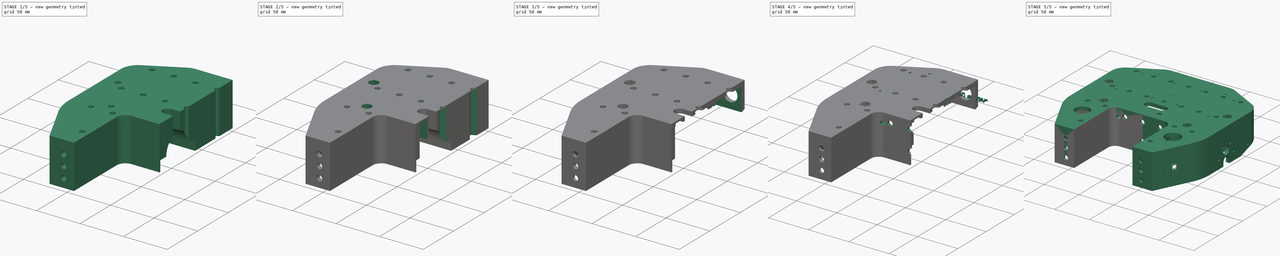
[diagram: build sequence overview — one tinted view per stage of 5, left to right]
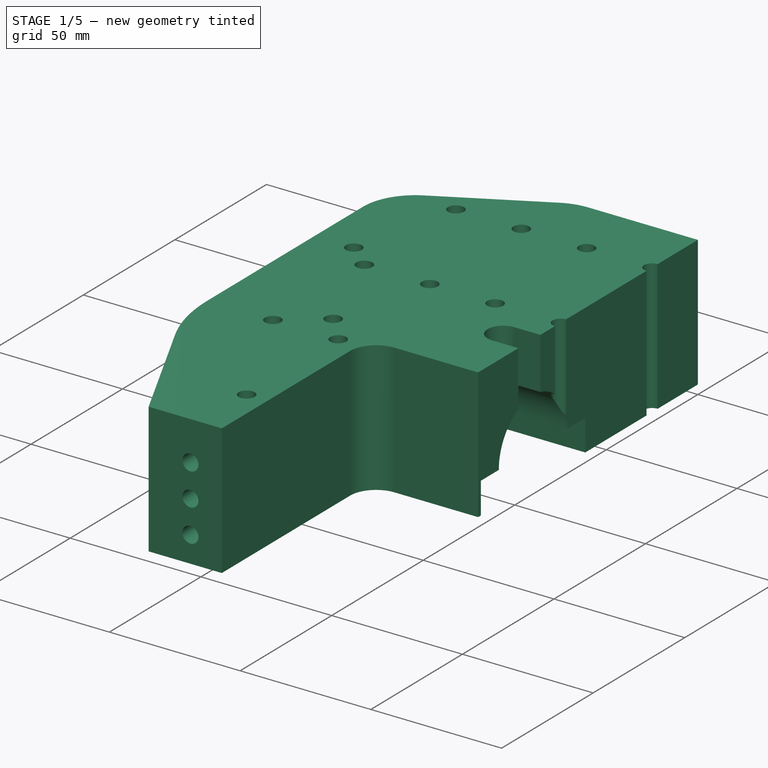
[diagram: stage 1 of 5 — iso view after this stage's code; geometry added in this stage tinted green]
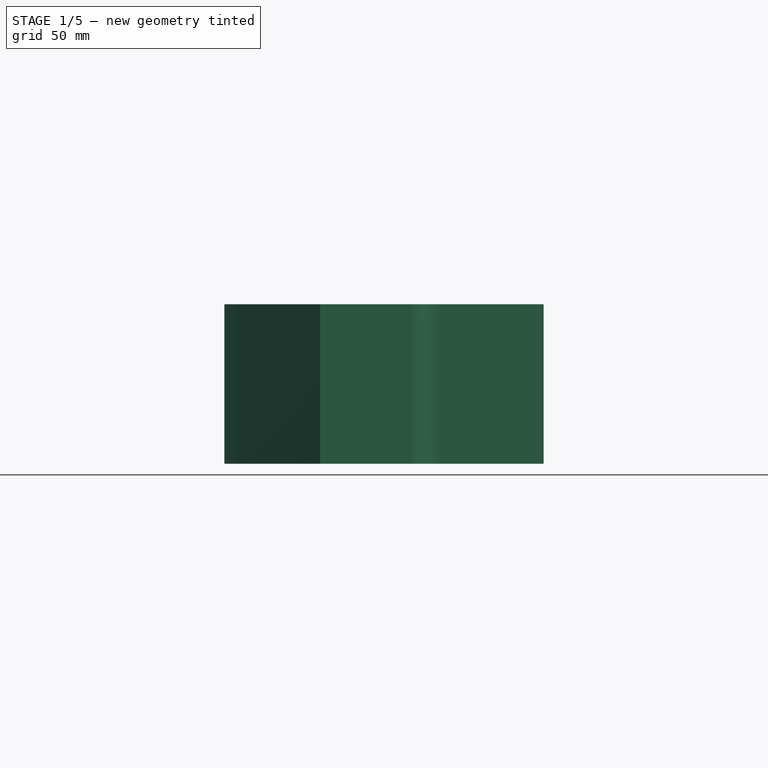
[diagram: stage 1 of 5 — front view after this stage's code; geometry added in this stage tinted green]
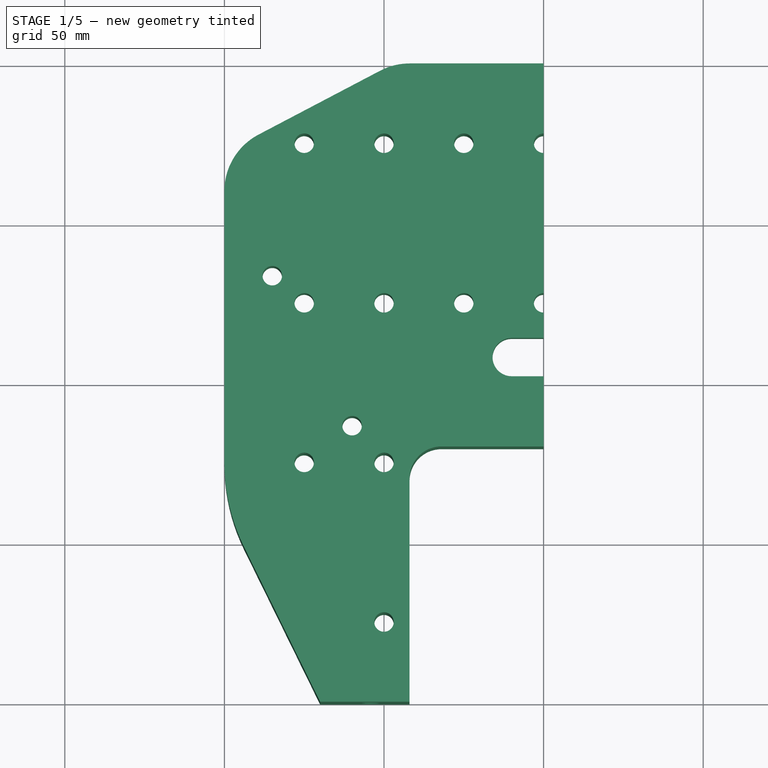
[diagram: stage 1 of 5 — top view after this stage's code; geometry added in this stage tinted green]
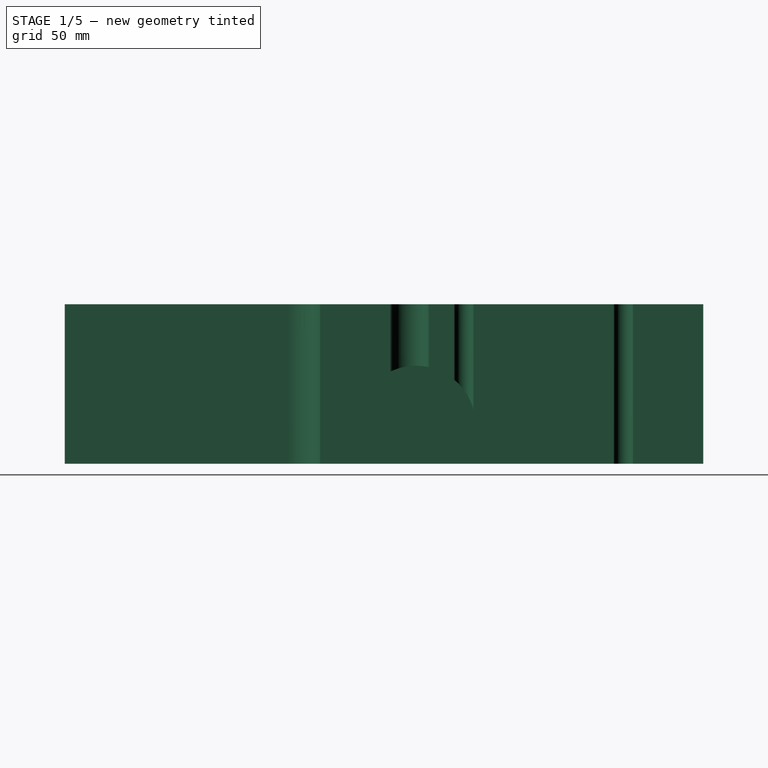
[diagram: stage 1 of 5 — right view after this stage's code; geometry added in this stage tinted green]
FCSTD DOCUMENT  (FreeCAD 0.20R)
Label: T07_mainchassis_assembly
License: All rights reserved
LicenseURL: http://en.wikipedia.org/wiki/All_rights_reserved
objects: Sketcher::SketchObject×18, PartDesign::Pocket×17, PartDesign::Pad×2, Part::Part2DObjectPython×2, PartDesign::Body×2, Part::Extrusion×1, Part::Mirroring×1, Part::FeaturePython×1, PartDesign::FeatureBase×1, App::Part×1
note: 64 computed .brp shape members not serialized (recipe doc carries the construction recipe); baked Part::Feature solids carry a one-line shape summary decoded from their .brp

FEATURE [Sketcher::SketchObject] Sketch024
  FullyConstrained = true
  MapMode = 5
  Placement = pos=(0,0,0) rot=(1,0,0;3.14159rad)
  sketch-geometry (9):
    g0: LineSegment StartX=-70.5395 StartY=92.096 StartZ=0 EndX=-89.976 EndY=50 EndZ=0
    g1: ArcOfCircle CenterX=-90.0038 CenterY=25 CenterZ=0 NormalX=0 NormalY=0 NormalZ=1 AngleXU=0 Radius=5 StartAngle=3.18049 EndAngle=4.71239
    g2: ArcOfCircle CenterX=-66 CenterY=90 CenterZ=0 NormalX=0 NormalY=0 NormalZ=1 AngleXU=0 Radius=5 StartAngle=1.5708 EndAngle=2.70904
    g3: ArcOfCircle CenterX=-40.0416 CenterY=26.9444 CenterZ=0 NormalX=0 NormalY=0 NormalZ=1 AngleXU=0 Radius=55 StartAngle=2.70904 EndAngle=3.18049
    g4: LineSegment StartX=-51 StartY=20 StartZ=0 EndX=-90.0038 EndY=20 EndZ=0
    g5: ArcOfCircle CenterX=-51 CenterY=90 CenterZ=0 NormalX=0 NormalY=0 NormalZ=1 AngleXU=0 Radius=5 StartAngle=1e-16 EndAngle=1.5708
    g6: ArcOfCircle CenterX=-51 CenterY=25 CenterZ=0 NormalX=0 NormalY=0 NormalZ=1 AngleXU=0 Radius=5 StartAngle=4.71239 EndAngle=6.28319
    g7: LineSegment StartX=-66 StartY=95 StartZ=0 EndX=-51 EndY=95 EndZ=0
    g8: LineSegment StartX=-46 StartY=90 StartZ=0 EndX=-46 EndY=25 EndZ=0
  constraints (25):
    c: Tangent(g0,g2) = -1.5708
    c: Tangent(g0,g3) = -1.5708
    c: Radius(g1) = 5
    c: Radius(g3) = 55
    c: Coincident(g3,g1)
    c: Tangent(g3,g1)
    c: DistanceX(g1,g-1) = 95
    c: DistanceY(g-1,g0) = 50
    c: Coincident(g4,g1)
    c: Horizontal(g4)
    c: Tangent(g1,g4)
    c: DistanceY(g-1,g4) = 20
    c: Vertical(g8)
    c: Horizontal(g7)
    c: Tangent(g4,g6) = 1.5708
    c: Tangent(g8,g6) = 1.5708
    c: Tangent(g8,g5) = 1.5708
    c: Tangent(g5,g7) = 1.5708
    c: Equal(g1,g6)
    c: Equal(g1,g2)
    c: Equal(g2,g5)
    c: DistanceY(g-1,g5) = 95
    c: DistanceX(g6,g-1) = 46
    c: Tangent(g7,g2) = 1.5708
    c: DistanceX(g2,g5) = 20
FEATURE [Sketcher::SketchObject] Sketch025
  FullyConstrained = true
  MapMode = 5
  Placement = pos=(0,0,0) rot=(1,0,0;3.14159rad)
  sketch-geometry (15):
    g0: LineSegment StartX=0 StartY=-95 StartZ=0 EndX=-41.9343 EndY=-95 EndZ=0
    g1: LineSegment StartX=-48.911 StartY=-93.2787 StartZ=0 EndX=-86.9767 EndY=-73.2787 EndZ=0
    g2: LineSegment StartX=-95 StartY=-60 StartZ=0 EndX=-95 EndY=-45 EndZ=0
    g3: ArcOfCircle CenterX=-41.9343 CenterY=-80 CenterZ=0 NormalX=0 NormalY=0 NormalZ=1 AngleXU=0 Radius=15 StartAngle=4.22862 EndAngle=4.71239
    g4: ArcOfCircle CenterX=-80 CenterY=-60 CenterZ=0 NormalX=0 NormalY=0 NormalZ=1 AngleXU=0 Radius=15 StartAngle=3.14159 EndAngle=4.22862
    g5: ArcOfCircle CenterX=-90 CenterY=-45 CenterZ=0 NormalX=0 NormalY=0 NormalZ=1 AngleXU=0 Radius=5 StartAngle=1.5708 EndAngle=3.14159
    g6: LineSegment StartX=-45 StartY=14 StartZ=0 EndX=0 EndY=14 EndZ=0
    g7: LineSegment StartX=0 StartY=-95 StartZ=0 EndX=0 EndY=14 EndZ=0
    g8: LineSegment StartX=-90 StartY=-40 StartZ=0 EndX=-72 EndY=-40 EndZ=0
    g9: LineSegment StartX=-72 StartY=-40 StartZ=0 EndX=-72 EndY=-10 EndZ=0
    g10: ArcOfCircle CenterX=-60 CenterY=-10 CenterZ=0 NormalX=0 NormalY=0 NormalZ=1 AngleXU=0 Radius=12 StartAngle=1.5708 EndAngle=3.14159
    g11: LineSegment StartX=-60 StartY=2 StartZ=0 EndX=-55 EndY=2 EndZ=0
    g12: ArcOfCircle CenterX=-55 CenterY=7 CenterZ=0 NormalX=0 NormalY=0 NormalZ=1 AngleXU=0 Radius=5 StartAngle=4.71239 EndAngle=6.28319
    g13: ArcOfCircle CenterX=-45 CenterY=9 CenterZ=0 NormalX=0 NormalY=0 NormalZ=1 AngleXU=0 Radius=5 StartAngle=1.5708 EndAngle=3.14159
    g14: LineSegment StartX=-50 StartY=7 StartZ=0 EndX=-50 EndY=9 EndZ=0
  constraints (39):
    c: Horizontal(g0)
    c: Vertical(g2)
    c: Tangent(g0,g3) = 1.5708
    c: Tangent(g1,g3) = 1.5708
    c: Tangent(g1,g4) = 1.5708
    c: Tangent(g2,g4) = 1.5708
    c: Tangent(g2,g5) = 1.5708
    c: Radius(g5) = 5
    c: Radius(g4) = 15
    c: Radius(g3) = 15
    c: DistanceX(g2,g-1) = 95
    c: DistanceY(g2,g-1) = 60
    c: Distance(g1) = 43
    c: DistanceY(g0,g-1) = 95
    c: DistanceY(g-1,g6) = 14
    c: Coincident(g7,g6)
    c: Vertical(g7)
    c: Horizontal(g6)
    c: PointOnObject(g6,g-2)
    c: Coincident(g7,g0)
    c: Vertical(g9)
    c: Horizontal(g8)
    c: DistanceY(g8,g-1) = 40
    c: DistanceX(g8,g-1) = 72
    c: Coincident(g9,g8)
    c: Tangent(g5,g8) = 1.5708
    c: DistanceY(g9,g-1) = 10
    c: Radius(g10) = 12
    c: Horizontal(g11)
    c: Equal(g5,g12)
    c: Tangent(g12,g11) = -1.5708
    c: Tangent(g10,g9) = 1.5708
    c: Tangent(g10,g11) = 1.5708
    c: DistanceX(g12,g-1) = 50
    c: Vertical(g14)
    c: Tangent(g14,g12) = -1.5708
    c: Tangent(g14,g13) = 1.5708
    c: Tangent(g13,g6) = 1.5708
    c: Equal(g12,g13)
FEATURE [Sketcher::SketchObject] Sketch026
  FullyConstrained = true
  MapMode = 5
  Support = -> [XY_Plane017]
  sketch-geometry (12):
    g0: LineSegment StartX=0 StartY=100 StartZ=0 EndX=-41.9343 EndY=100 EndZ=0
    g1: LineSegment StartX=-51.2366 StartY=97.705 StartZ=0 EndX=-89.3023 EndY=77.705 EndZ=0
    g2: LineSegment StartX=-100 StartY=60 StartZ=0 EndX=-100 EndY=-25 EndZ=0
    g3: LineSegment StartX=-93.8505 StartY=-51.4598 StartZ=0 EndX=-70 EndY=-100 EndZ=0
    g4: LineSegment StartX=0 StartY=-20 StartZ=0 EndX=0 EndY=100 EndZ=0
    g5: ArcOfCircle CenterX=-40 CenterY=-25 CenterZ=0 NormalX=0 NormalY=0 NormalZ=1 AngleXU=0 Radius=60 StartAngle=3.14159 EndAngle=3.5983
    g6: ArcOfCircle CenterX=-80 CenterY=60 CenterZ=0 NormalX=0 NormalY=0 NormalZ=1 AngleXU=0 Radius=20 StartAngle=2.05456 EndAngle=3.14159
    g7: ArcOfCircle CenterX=-41.9343 CenterY=80 CenterZ=0 NormalX=0 NormalY=0 NormalZ=1 AngleXU=0 Radius=20 StartAngle=1.5708 EndAngle=2.05456
    g8: ArcOfCircle CenterX=-32 CenterY=-30 CenterZ=0 NormalX=0 NormalY=0 NormalZ=1 AngleXU=0 Radius=10 StartAngle=1.5708 EndAngle=3.14159
    g9: LineSegment StartX=-32 StartY=-20 StartZ=0 EndX=0 EndY=-20 EndZ=0
    g10: LineSegment StartX=-42 StartY=-30 StartZ=0 EndX=-42 EndY=-100 EndZ=0
    g11: LineSegment StartX=-70 StartY=-100 StartZ=0 EndX=-42 EndY=-100 EndZ=0
  constraints (32):
    c: Coincident(g4,g0)
    c: Vertical(g4)
    c: Vertical(g2)
    c: Horizontal(g0)
    c: Distance(g4) = 120
    c: DistanceY(g-1,g0) = 100
    c: DistanceX(g0,g-1) = 0
    c: Tangent(g2,g5) = -1.5708
    c: Tangent(g3,g5) = -1.5708
    c: Radius(g5) = 60
    c: DistanceX(g2,g-1) = 100
    c: DistanceY(g2,g-1) = 25
    c: Tangent(g1,g6) = -1.5708
    c: Tangent(g2,g6) = -1.5708
    c: Radius(g6) = 20
    c: Distance(g2) = 85
    c: Tangent(g1,g7) = -1.5708
    c: Tangent(g0,g7) = -1.5708
    c: Radius(g7) = 20
    c: Distance(g1) = 43
    c: Vertical(g10)
    c: Horizontal(g9)
    c: Horizontal(g11)
    c: Coincident(g11,g10)
    c: Tangent(g8,g10) = -1.5708
    c: Coincident(g9,g4)
    c: DistanceY(g10,g0) = 200
    c: Radius(g8) = 10
    c: DistanceX(g10,g4) = 42
    c: Tangent(g8,g9) = 1.5708
    c: DistanceX(g3,g4) = 70
    c: Coincident(g3,g11)
FEATURE [Sketcher::SketchObject] Sketch027
  FullyConstrained = true
  MapMode = 5
  Placement = pos=(0,0,0) rot=(0.57735,0.57735,0.57735;2.0944rad)
  sketch-geometry (7):
    g0: ArcOfCircle CenterX=10 CenterY=12 CenterZ=0 NormalX=0 NormalY=0 NormalZ=1 AngleXU=0 Radius=18.7 StartAngle=1.2e-15 EndAngle=3.14159
    g1: LineSegment StartX=10 StartY=20 StartZ=0 EndX=10 EndY=0 EndZ=0
    g2: LineSegment StartX=-8.7 StartY=12 StartZ=0 EndX=-18.5 EndY=12 EndZ=0
    g3: LineSegment StartX=-18.5 StartY=12 StartZ=0 EndX=-18.5 EndY=0 EndZ=0
    g4: LineSegment StartX=-18.5 StartY=0 StartZ=0 EndX=38.5 EndY=0 EndZ=0
    g5: LineSegment StartX=38.5 StartY=0 StartZ=0 EndX=38.5 EndY=12 EndZ=0
    g6: LineSegment StartX=38.5 StartY=12 StartZ=0 EndX=28.7 EndY=12 EndZ=0
  constraints (21):
    c: Vertical(g1)
    c: DistanceX(g-1,g1) = 10
    c: Coincident(g2,g3)
    c: Coincident(g3,g4)
    c: Coincident(g4,g5)
    c: Coincident(g5,g6)
    c: Coincident(g2,g0)
    c: Coincident(g6,g0)
    c: Horizontal(g2)
    c: Horizontal(g6)
    c: Vertical(g3)
    c: Distance(g2) = 9.8
    c: Distance(g6) = 9.8
    c: Distance(g3) = 12
    c: DistanceY(g3,g-1) = 0
    c: Symmetric(g3,g4,g1)
    c: DistanceY(g0,g0) = 0
    c: Distance(g4) = 57
    c: Symmetric(g2,g5,g1)
    c: DistanceY(g1,g1) = 20
    c: DistanceY(g1,g-1) = 0
FEATURE [Sketcher::SketchObject] Sketch028
  FullyConstrained = true
  MapMode = 5
  Placement = pos=(-100,0,0) rot=(0.57735,-0.57735,-0.57735;2.0944rad)
  sketch-geometry (18):
    g0: Circle CenterX=-2.25 CenterY=25.4234 CenterZ=0 NormalX=0 NormalY=0 NormalZ=1 AngleXU=0 Radius=1.55
    g1: Circle CenterX=-17.75 CenterY=25.4234 CenterZ=0 NormalX=0 NormalY=0 NormalZ=1 AngleXU=0 Radius=1.55
    g2: Circle CenterX=-25.5 CenterY=12 CenterZ=0 NormalX=0 NormalY=0 NormalZ=1 AngleXU=0 Radius=1.55
    g3: Circle CenterX=5.5 CenterY=12 CenterZ=0 NormalX=0 NormalY=0 NormalZ=1 AngleXU=0 Radius=1.55
    g4: ArcOfCircle CenterX=-10 CenterY=5 CenterZ=0 NormalX=0 NormalY=0 NormalZ=1 AngleXU=0 Radius=6.1 StartAngle=6.28318 EndAngle=9.42478
    g5: LineSegment StartX=-16.1 StartY=5 StartZ=0 EndX=-16.1 EndY=0 EndZ=0
    g6: LineSegment StartX=-16.1 StartY=0 StartZ=0 EndX=-3.9 EndY=0 EndZ=0
    g7: LineSegment StartX=-3.9 StartY=0 StartZ=0 EndX=-3.9 EndY=5 EndZ=0
    g8: LineSegment StartX=5.5 StartY=12 StartZ=0 EndX=-2.25 EndY=25.4234 EndZ=0
    g9: LineSegment StartX=-2.25 StartY=25.4234 StartZ=0 EndX=-17.75 EndY=25.4234 EndZ=0
    g10: LineSegment StartX=-17.75 StartY=25.4234 StartZ=0 EndX=-25.5 EndY=12 EndZ=0
    g11: LineSegment StartX=-25.5 StartY=12 StartZ=0 EndX=-17.75 EndY=-1.42339 EndZ=0
    g12: LineSegment StartX=-17.75 StartY=-1.42339 StartZ=0 EndX=-2.25 EndY=-1.42339 EndZ=0
    g13: LineSegment StartX=-2.25 StartY=-1.42339 StartZ=0 EndX=5.5 EndY=12 EndZ=0
    g14: Circle CenterX=-10 CenterY=12 CenterZ=0 NormalX=0 NormalY=0 NormalZ=1 AngleXU=0 Radius=15.5
    g15: LineSegment StartX=-10 StartY=10 StartZ=0 EndX=-10 EndY=0 EndZ=0
    g16: Circle CenterX=-10 CenterY=19 CenterZ=0 NormalX=0 NormalY=0 NormalZ=1 AngleXU=0 Radius=6.1
    g17: Circle CenterX=-54.3 CenterY=10.3 CenterZ=0 NormalX=0 NormalY=0 NormalZ=1 AngleXU=0 Radius=1.55
  constraints (47):
    c: Equal(g1,g0)
    c: Equal(g0,g3)
    c: Equal(g3,g2)
    c: Coincident(g5,g6)
    c: Coincident(g6,g7)
    c: Coincident(g7,g4)
    c: Coincident(g4,g5)
    c: Vertical(g5)
    c: Vertical(g7)
    c: Tangent(g4,g5)
    c: Tangent(g4,g7)
    c: DistanceY(g-1,g6) = 0
    c: Distance(g6) = 12.2
    c: Coincident(g8,g9)
    c: Coincident(g9,g10)
    c: Coincident(g10,g11)
    c: Coincident(g11,g12)
    c: Coincident(g12,g13)
    c: Coincident(g13,g8)
    c: Equal(g8, g9-g13) x5
    c: PointOnObject(g8,g14)
    c: PointOnObject(g9,g14)
    c: PointOnObject(g10,g14)
    c: PointOnObject(g11,g14)
    c: PointOnObject(g12,g14)
    c: PointOnObject(g13,g14)
    c: DistanceX(g14,g-1) = 10
    c: DistanceY(g4,g14) = 7
    c: DistanceY(g-1,g4) = 5
    c: Horizontal(g9)
    c: Coincident(g0,g8)
    c: Coincident(g3,g8)
    c: Coincident(g2,g10)
    c: Coincident(g1,g9)
    c: Diameter(g14) = 31
    c: Diameter(g0) = 3.1
    c: Vertical(g15)
    c: Distance(g15) = 10
    c: DistanceY(g-1,g15) = 0
    c: Symmetric(g5,g6,g15)
    c: DistanceX(g-1,g15) = -10
    c: DistanceY(g14,g16) = 7
    c: DistanceX(g14,g16) = 0
    c: Diameter(g16) = 12.2
    c: Equal(g2,g17)
    c: DistanceX(g17,g-1) = 54.3
    c: DistanceY(g-1,g17) = 10.3
FEATURE [PartDesign::Pad] Pad007
  AllowMultiFace = false
  Direction = (0,0,1)
  Length = 50
  Length2 = 100
  Profile = -> Sketch026
  ReferenceAxis = -> Sketch026 [N_Axis]
  Type = 0
FEATURE [PartDesign::Pocket] Pocket021  label="pocket gear motor RB35"
  AllowMultiFace = false
  BaseFeature = -> Pad007
  Direction = (-1,0,0)
  Length = 95
  Length2 = 100
  Profile = -> Sketch027
  ReferenceAxis = -> Sketch027 [N_Axis]
  Type = 0
FEATURE [Sketcher::SketchObject] Sketch029
  FullyConstrained = true
  MapMode = 5
  Placement = pos=(0,-100,0) rot=(1,0,0;1.5708rad)
  sketch-geometry (3):
    g0: Circle CenterX=-54 CenterY=10 CenterZ=0 NormalX=0 NormalY=0 NormalZ=1 AngleXU=0 Radius=3.05
    g1: Circle CenterX=-54 CenterY=35 CenterZ=0 NormalX=0 NormalY=0 NormalZ=1 AngleXU=0 Radius=3.05
    g2: Circle CenterX=-54 CenterY=22.5 CenterZ=0 NormalX=0 NormalY=0 NormalZ=1 AngleXU=0 Radius=3.05
  constraints (9):
    c: DistanceY(g0,g1) = 25
    c: DistanceX(g0,g-1) = 54
    c: DistanceX(g1,g-1) = 54
    c: DistanceY(g-1,g0) = 10
    c: Equal(g1,g0)
    c: Diameter(g0) = 6.1
    c: DistanceX(g0,g2) = 0
    c: Equal(g0,g2)
    c: DistanceY(g0,g2) = 12.5
FEATURE [Sketcher::SketchObject] Sketch030
  FullyConstrained = true
  MapMode = 5
  Placement = pos=(0,0,45) rot=(1,0,0;3.14159rad)
  sketch-geometry (19):
    g0: Circle CenterX=-50 CenterY=75 CenterZ=0 NormalX=0 NormalY=0 NormalZ=1 AngleXU=0 Radius=3.05
    g1: Circle CenterX=-50 CenterY=25 CenterZ=0 NormalX=0 NormalY=0 NormalZ=1 AngleXU=0 Radius=3.05
    g2: Circle CenterX=-75 CenterY=25 CenterZ=0 NormalX=0 NormalY=0 NormalZ=1 AngleXU=0 Radius=3.05
    g3: Circle CenterX=-60 CenterY=13.5 CenterZ=0 NormalX=0 NormalY=0 NormalZ=1 AngleXU=0 Radius=3.05
    g4: Circle CenterX=-85 CenterY=-33.5 CenterZ=0 NormalX=0 NormalY=0 NormalZ=1 AngleXU=0 Radius=3.05
    g5: Circle CenterX=-75 CenterY=-25 CenterZ=0 NormalX=0 NormalY=0 NormalZ=1 AngleXU=0 Radius=3.05
    g6: Circle CenterX=-50 CenterY=-25 CenterZ=0 NormalX=0 NormalY=0 NormalZ=1 AngleXU=0 Radius=3.05
    g7: Circle CenterX=-25 CenterY=-25 CenterZ=0 NormalX=0 NormalY=0 NormalZ=1 AngleXU=0 Radius=3.05
    g8: ArcOfCircle CenterX=0 CenterY=-25 CenterZ=0 NormalX=0 NormalY=0 NormalZ=1 AngleXU=0 Radius=3.05 StartAngle=1.5708 EndAngle=4.71239
    g9: LineSegment StartX=2e-16 StartY=-21.95 StartZ=0 EndX=2e-16 EndY=-28.05 EndZ=0
    g10: ArcOfCircle CenterX=-10 CenterY=-8 CenterZ=0 NormalX=0 NormalY=0 NormalZ=1 AngleXU=0 Radius=6 StartAngle=1.5708 EndAngle=4.71239
    g11: LineSegment StartX=-10 StartY=-2 StartZ=0 EndX=4.11447e-06 EndY=-2 EndZ=0
    g12: LineSegment StartX=4.11447e-06 StartY=-2 StartZ=0 EndX=4.11447e-06 EndY=-14 EndZ=0
    g13: LineSegment StartX=4.11447e-06 StartY=-14 StartZ=0 EndX=-9.99999 EndY=-14 EndZ=0
    g14: Circle CenterX=-25 CenterY=-75 CenterZ=0 NormalX=0 NormalY=0 NormalZ=1 AngleXU=0 Radius=3.05
    g15: Circle CenterX=-50 CenterY=-75 CenterZ=0 NormalX=0 NormalY=0 NormalZ=1 AngleXU=0 Radius=3.05
    g16: Circle CenterX=-75 CenterY=-75 CenterZ=0 NormalX=0 NormalY=0 NormalZ=1 AngleXU=0 Radius=3.05
    g17: ArcOfCircle CenterX=0 CenterY=-75 CenterZ=0 NormalX=0 NormalY=0 NormalZ=1 AngleXU=0 Radius=3.05 StartAngle=1.5708 EndAngle=4.71239
    g18: LineSegment StartX=-6e-16 StartY=-78.05 StartZ=0 EndX=-6e-16 EndY=-71.95 EndZ=0
  constraints (60):
    c: Equal(g1,g2)
    c: DistanceY(g1,g2) = 0
    c: DistanceX(g2,g1) = 25
    c: DistanceX(g0,g1) = 0
    c: Equal(g3,g4)
    c: DistanceX(g4,g3) = 25
    c: DistanceY(g4,g3) = 47
    c: DistanceX(g3,g-1) = 60
    c: DistanceY(g-1,g3) = 13.5
    c: Diameter(g3) = 6.1
    c: Coincident(g9,g8)
    c: Coincident(g9,g8)
    c: Vertical(g9)
    c: PointOnObject(g8,g9)
    c: Equal(g5,g6)
    c: Equal(g6,g7)
    c: Equal(g7,g8)
    c: DistanceY(g5,g6) = 0
    c: DistanceY(g6,g7) = 0
    c: DistanceY(g8,g7) = 0
    c: DistanceY(g8,g-1) = 25
    c: DistanceX(g8,g-1) = 0
    c: DistanceX(g6,g1) = 0
    c: DistanceX(g5,g2) = 0
    c: Coincident(g11,g12)
    c: Coincident(g12,g13)
    c: Coincident(g11,g10)
    c: Coincident(g13,g10)
    c: Horizontal(g11)
    c: Horizontal(g13)
    c: Vertical(g12)
    c: Tangent(g10,g11)
    c: Tangent(g10,g13)
    c: Distance(g12) = 12
    c: Distance(g11) = 10
    c: DistanceY(g-1,g10) = -8
    c: DistanceX(g10,g-1) = 10
    c: Coincident(g18,g17)
    c: Coincident(g18,g17)
    c: Vertical(g18)
    c: PointOnObject(g17,g18)
    c: Equal(g8,g17)
    c: Equal(g17,g14)
    c: Equal(g14,g15)
    c: Equal(g15,g16)
    c: DistanceY(g17,g14) = 0
    c: DistanceY(g14,g15) = 0
    c: DistanceY(g15,g16) = 0
    c: DistanceX(g8,g17) = 0
    c: DistanceX(g7,g14) = 0
    c: DistanceX(g6,g15) = 0
    c: DistanceX(g5,g16) = 0
    c: DistanceY(g17,g8) = 50
    c: DistanceY(g-1,g1) = 25
    c: DistanceY(g-1,g0) = 75
    c: DistanceX(g1,g-1) = 50
    c: DistanceX(g7,g-1) = 25
    c: Diameter(g5) = 6.1
    c: Equal(g5,g2)
    c: Equal(g2,g0)
FEATURE [PartDesign::Pocket] Pocket023  label="Bohrungen für Schrauben (Grid)"
  AllowMultiFace = false
  BaseFeature = -> Pocket021
  Direction = (0,0,1)
  Length = 5
  Length2 = 100
  Midplane = true
  Profile = -> Sketch030
  Type = 1
FEATURE [Sketcher::SketchObject] Sketch031
  FullyConstrained = false
  MapMode = 5
  Placement = pos=(0,100,0) rot=(0,0.707107,0.707107;3.14159rad)
  sketch-geometry (3):
    g0: Circle CenterX=21.25 CenterY=42.5 CenterZ=0 NormalX=0 NormalY=0 NormalZ=1 AngleXU=0 Radius=0.5
    g1: Circle CenterX=21.25 CenterY=25 CenterZ=0 NormalX=0 NormalY=0 NormalZ=1 AngleXU=0 Radius=0.5
    g2: Circle CenterX=13 CenterY=33.75 CenterZ=0 NormalX=0 NormalY=0 NormalZ=1 AngleXU=0 Radius=8.25
  constraints (9):
    c: DistanceX(g1,g0) = 0
    c: Equal(g1,g0)
    c: DistanceY(g1,g0) = 17.5
    c: DistanceY(g-1,g1) = 25
    c: DistanceX(g-1,g1) = 21.25
    c: Diameter(g1) = 1
    c: DistanceX(g-1,g2) = 13
    c: DistanceY(g1,g2) = 8.75
    c: Diameter(g2) = 16.5
FEATURE [PartDesign::Pocket] Pocket025  label="Ultraschall vorne mitte"
  AllowMultiFace = false
  BaseFeature = -> Pocket023
  Direction = (0,-1,2e-16)
  Length = 8
  Length2 = 100
  Profile = -> Sketch031
  Type = 0
FEATURE [PartDesign::Pocket] Pocket028  label="Verschraubungen hinten"
  AllowMultiFace = false
  BaseFeature = -> Pocket025
  Direction = (0,1,-2e-16)
  Length = 8
  Length2 = 100
  Profile = -> Sketch029
  Type = 0
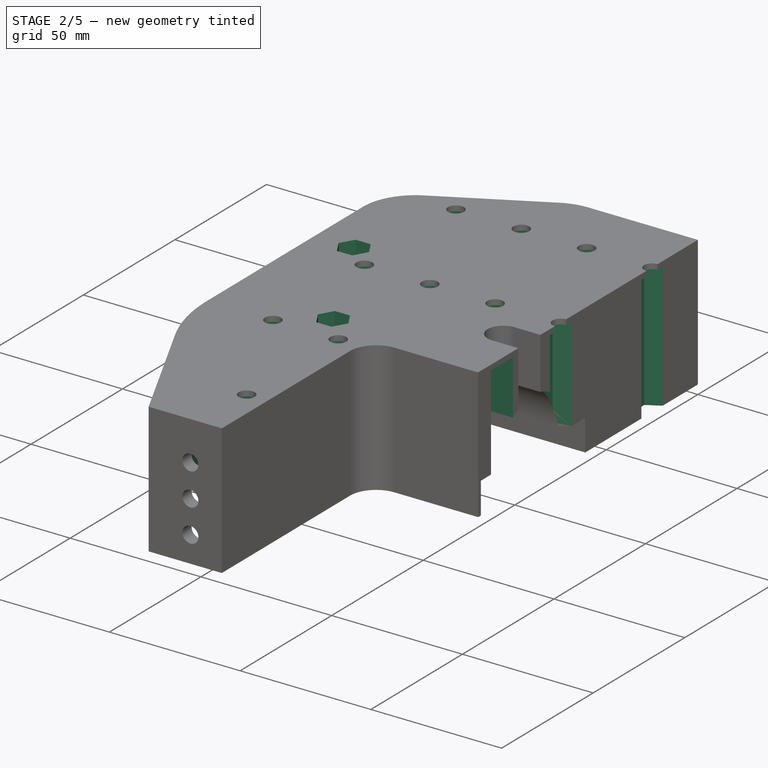
[diagram: stage 2 of 5 — iso view after this stage's code; geometry added in this stage tinted green]
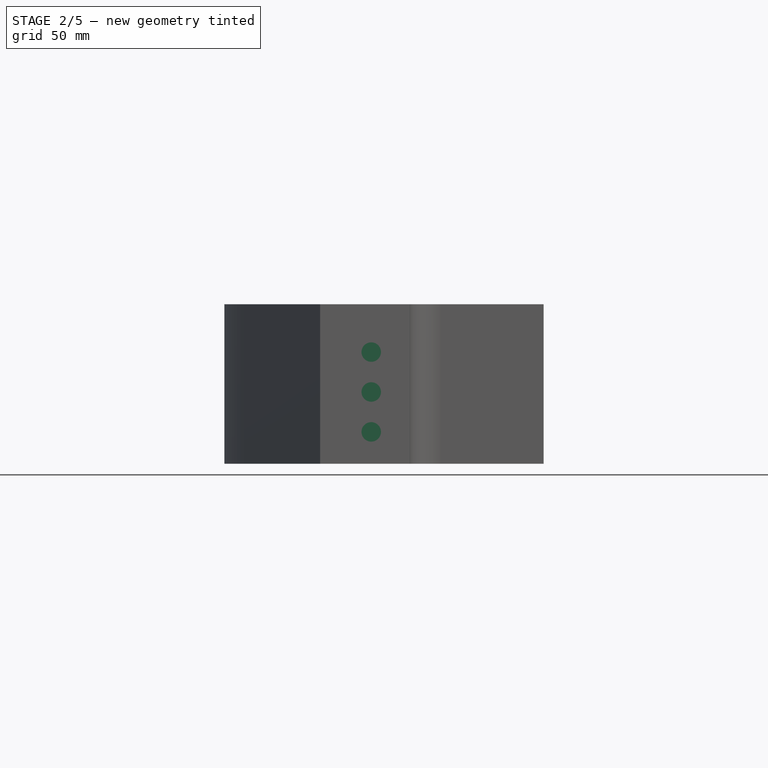
[diagram: stage 2 of 5 — front view after this stage's code; geometry added in this stage tinted green]
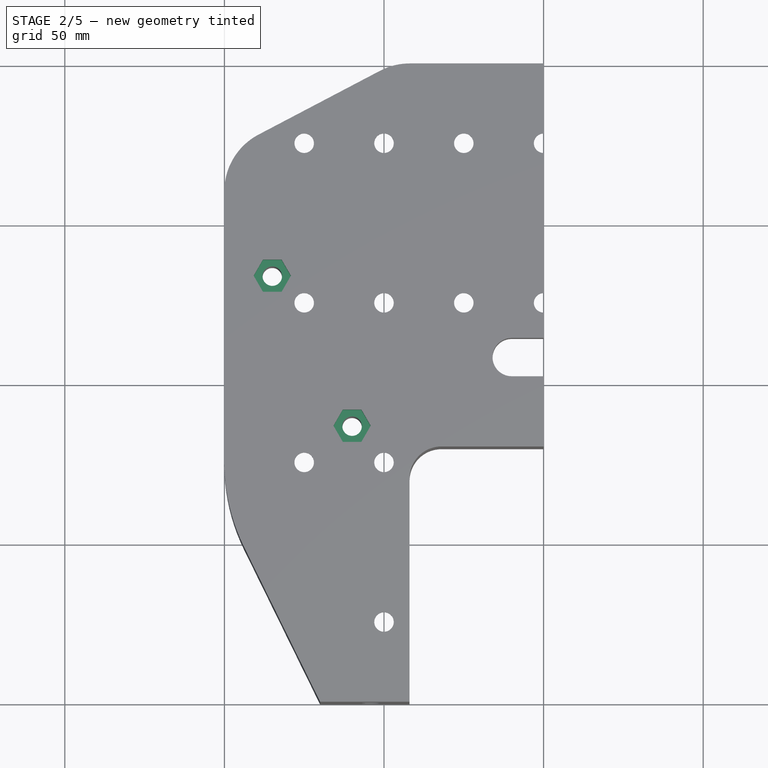
[diagram: stage 2 of 5 — top view after this stage's code; geometry added in this stage tinted green]
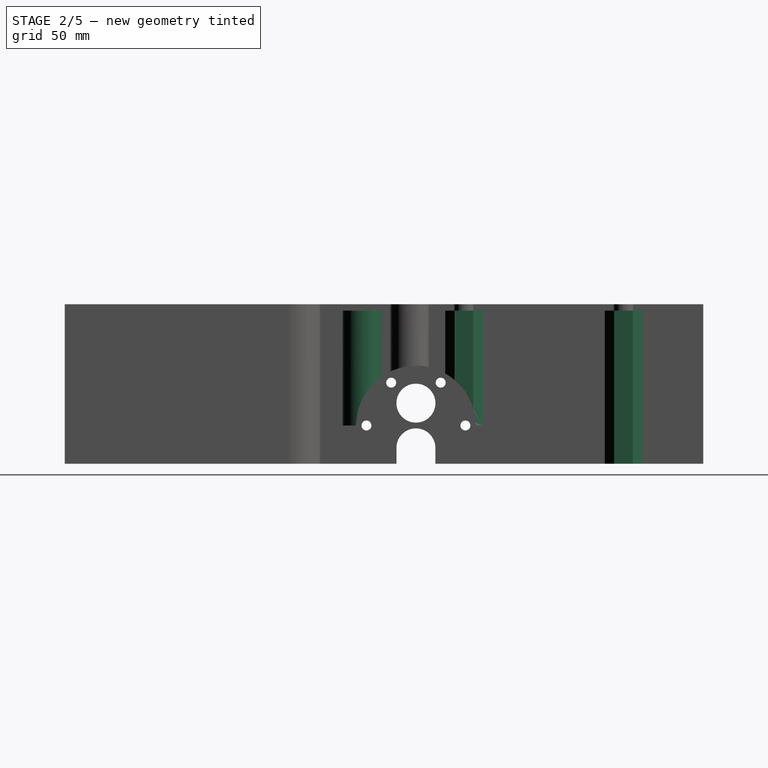
[diagram: stage 2 of 5 — right view after this stage's code; geometry added in this stage tinted green]
FEATURE [Sketcher::SketchObject] Sketch035
  FullyConstrained = true
  MapMode = 5
  Placement = pos=(0,0,0) rot=(0.57735,0.57735,0.57735;2.0944rad)
  sketch-geometry (3):
    g0: LineSegment StartX=40 StartY=0 StartZ=0 EndX=100 EndY=0 EndZ=0
    g1: LineSegment StartX=100 StartY=0 StartZ=0 EndX=100 EndY=20 EndZ=0
    g2: LineSegment StartX=100 StartY=20 StartZ=0 EndX=40 EndY=0 EndZ=0
  constraints (9):
    c: Coincident(g0,g1)
    c: Coincident(g1,g2)
    c: Coincident(g2,g0)
    c: Horizontal(g0)
    c: Vertical(g1)
    c: DistanceY(g-1,g0) = 0
    c: DistanceX(g-1,g0) = 100
    c: Distance(g1) = 20
    c: Distance(g0) = 60
FEATURE [Sketcher::SketchObject] Sketch040
  FullyConstrained = true
  MapMode = 5
  Placement = pos=(0,0,0) rot=(1,0,0;3.14159rad)
  Support = -> [Pocket023]
  sketch-geometry (84):
    g0: Circle CenterX=-50 CenterY=75 CenterZ=0 NormalX=0 NormalY=0 NormalZ=1 AngleXU=0 Radius=5.83
    g1: Circle CenterX=-50 CenterY=25 CenterZ=0 NormalX=0 NormalY=0 NormalZ=1 AngleXU=0 Radius=5.83
    g2: Circle CenterX=-75 CenterY=25 CenterZ=0 NormalX=0 NormalY=0 NormalZ=1 AngleXU=0 Radius=5.83
    g3: LineSegment StartX=-44.17 StartY=75 StartZ=0 EndX=-47.085 EndY=80.0489 EndZ=0
    g4: LineSegment StartX=-47.085 StartY=80.0489 StartZ=0 EndX=-52.915 EndY=80.0489 EndZ=0
    g5: LineSegment StartX=-52.915 StartY=80.0489 StartZ=0 EndX=-55.83 EndY=75 EndZ=0
    g6: LineSegment StartX=-55.83 StartY=75 StartZ=0 EndX=-52.915 EndY=69.9511 EndZ=0
    g7: LineSegment StartX=-52.915 StartY=69.9511 StartZ=0 EndX=-47.085 EndY=69.9511 EndZ=0
    g8: LineSegment StartX=-47.085 StartY=69.9511 StartZ=0 EndX=-44.17 EndY=75 EndZ=0
    g9: Circle CenterX=-50 CenterY=75 CenterZ=0 NormalX=0 NormalY=0 NormalZ=1 AngleXU=0 Radius=5.83
    g10: LineSegment StartX=-72.085 StartY=19.9511 StartZ=0 EndX=-69.17 EndY=25 EndZ=0
    g11: LineSegment StartX=-69.17 StartY=25 StartZ=0 EndX=-72.085 EndY=30.0489 EndZ=0
    g12: LineSegment StartX=-72.085 StartY=30.0489 StartZ=0 EndX=-77.915 EndY=30.0489 EndZ=0
    g13: LineSegment StartX=-77.915 StartY=30.0489 StartZ=0 EndX=-80.83 EndY=25 EndZ=0
    g14: LineSegment StartX=-80.83 StartY=25 StartZ=0 EndX=-77.915 EndY=19.9511 EndZ=0
    g15: LineSegment StartX=-77.915 StartY=19.9511 StartZ=0 EndX=-72.085 EndY=19.9511 EndZ=0
    g16: Circle CenterX=-75 CenterY=25 CenterZ=0 NormalX=0 NormalY=0 NormalZ=1 AngleXU=0 Radius=5.83
    g17: LineSegment StartX=-47.085 StartY=19.9511 StartZ=0 EndX=-44.17 EndY=25 EndZ=0
    g18: LineSegment StartX=-44.17 StartY=25 StartZ=0 EndX=-47.085 EndY=30.0489 EndZ=0
    g19: LineSegment StartX=-47.085 StartY=30.0489 StartZ=0 EndX=-52.915 EndY=30.0489 EndZ=0
    g20: LineSegment StartX=-52.915 StartY=30.0489 StartZ=0 EndX=-55.83 EndY=25 EndZ=0
    g21: LineSegment StartX=-55.83 StartY=25 StartZ=0 EndX=-52.915 EndY=19.9511 EndZ=0
    g22: LineSegment StartX=-52.915 StartY=19.9511 StartZ=0 EndX=-47.085 EndY=19.9511 EndZ=0
    g23: Circle CenterX=-50 CenterY=25 CenterZ=0 NormalX=0 NormalY=0 NormalZ=1 AngleXU=0 Radius=5.83
    g24: LineSegment StartX=-72.085 StartY=-30.0489 StartZ=0 EndX=-69.17 EndY=-25 EndZ=0
    g25: LineSegment StartX=-69.17 StartY=-25 StartZ=0 EndX=-72.085 EndY=-19.9511 EndZ=0
    g26: LineSegment StartX=-72.085 StartY=-19.9511 StartZ=0 EndX=-77.915 EndY=-19.9511 EndZ=0
    g27: LineSegment StartX=-77.915 StartY=-19.9511 StartZ=0 EndX=-80.83 EndY=-25 EndZ=0
    g28: LineSegment StartX=-80.83 StartY=-25 StartZ=0 EndX=-77.915 EndY=-30.0489 EndZ=0
    g29: LineSegment StartX=-77.915 StartY=-30.0489 StartZ=0 EndX=-72.085 EndY=-30.0489 EndZ=0
    g30: Circle CenterX=-75 CenterY=-25 CenterZ=0 NormalX=0 NormalY=0 NormalZ=1 AngleXU=0 Radius=5.83
    g31: LineSegment StartX=-47.085 StartY=-30.0489 StartZ=0 EndX=-44.17 EndY=-25 EndZ=0
    g32: LineSegment StartX=-44.17 StartY=-25 StartZ=0 EndX=-47.085 EndY=-19.9511 EndZ=0
    g33: LineSegment StartX=-47.085 StartY=-19.9511 StartZ=0 EndX=-52.915 EndY=-19.9511 EndZ=0
    g34: LineSegment StartX=-52.915 StartY=-19.9511 StartZ=0 EndX=-55.83 EndY=-25 EndZ=0
    g35: LineSegment StartX=-55.83 StartY=-25 StartZ=0 EndX=-52.915 EndY=-30.0489 EndZ=0
    g36: LineSegment StartX=-52.915 StartY=-30.0489 StartZ=0 EndX=-47.085 EndY=-30.0489 EndZ=0
    g37: Circle CenterX=-50 CenterY=-25 CenterZ=0 NormalX=0 NormalY=0 NormalZ=1 AngleXU=0 Radius=5.83
    g38: LineSegment StartX=-22.085 StartY=-30.0489 StartZ=0 EndX=-19.17 EndY=-25 EndZ=0
    g39: LineSegment StartX=-19.17 StartY=-25 StartZ=0 EndX=-22.085 EndY=-19.9511 EndZ=0
    g40: LineSegment StartX=-22.085 StartY=-19.9511 StartZ=0 EndX=-27.915 EndY=-19.9511 EndZ=0
    g41: LineSegment StartX=-27.915 StartY=-19.9511 StartZ=0 EndX=-30.83 EndY=-25 EndZ=0
    g42: LineSegment StartX=-30.83 StartY=-25 StartZ=0 EndX=-27.915 EndY=-30.0489 EndZ=0
    g43: LineSegment StartX=-27.915 StartY=-30.0489 StartZ=0 EndX=-22.085 EndY=-30.0489 EndZ=0
    g44: Circle CenterX=-25 CenterY=-25 CenterZ=0 NormalX=0 NormalY=0 NormalZ=1 AngleXU=0 Radius=5.83
    g45: LineSegment StartX=-69.17 StartY=-75 StartZ=0 EndX=-72.085 EndY=-69.9511 EndZ=0
    g46: LineSegment StartX=-72.085 StartY=-69.9511 StartZ=0 EndX=-77.915 EndY=-69.9511 EndZ=0
    g47: LineSegment StartX=-77.915 StartY=-69.9511 StartZ=0 EndX=-80.83 EndY=-75 EndZ=0
    g48: LineSegment StartX=-80.83 StartY=-75 StartZ=0 EndX=-77.915 EndY=-80.0489 EndZ=0
    g49: LineSegment StartX=-77.915 StartY=-80.0489 StartZ=0 EndX=-72.085 EndY=-80.0489 EndZ=0
    g50: LineSegment StartX=-72.085 StartY=-80.0489 StartZ=0 EndX=-69.17 EndY=-75 EndZ=0
    g51: Circle CenterX=-75 CenterY=-75 CenterZ=0 NormalX=0 NormalY=0 NormalZ=1 AngleXU=0 Radius=5.83
    g52: LineSegment StartX=-52.915 StartY=-80.0489 StartZ=0 EndX=-47.085 EndY=-80.0489 EndZ=0
    g53: LineSegment StartX=-47.085 StartY=-80.0489 StartZ=0 EndX=-44.17 EndY=-75 EndZ=0
    g54: LineSegment StartX=-44.17 StartY=-75 StartZ=0 EndX=-47.085 EndY=-69.9511 EndZ=0
    g55: LineSegment StartX=-47.085 StartY=-69.9511 StartZ=0 EndX=-52.915 EndY=-69.9511 EndZ=0
    g56: LineSegment StartX=-52.915 StartY=-69.9511 StartZ=0 EndX=-55.83 EndY=-75 EndZ=0
    g57: LineSegment StartX=-55.83 StartY=-75 StartZ=0 EndX=-52.915 EndY=-80.0489 EndZ=0
    g58: Circle CenterX=-50 CenterY=-75 CenterZ=0 NormalX=0 NormalY=0 NormalZ=1 AngleXU=0 Radius=5.83
    g59: LineSegment StartX=-22.085 StartY=-80.0489 StartZ=0 EndX=-19.17 EndY=-75 EndZ=0
    g60: LineSegment StartX=-19.17 StartY=-75 StartZ=0 EndX=-22.085 EndY=-69.9511 EndZ=0
    g61: LineSegment StartX=-22.085 StartY=-69.9511 StartZ=0 EndX=-27.915 EndY=-69.9511 EndZ=0
    g62: LineSegment StartX=-27.915 StartY=-69.9511 StartZ=0 EndX=-30.83 EndY=-75 EndZ=0
    g63: LineSegment StartX=-30.83 StartY=-75 StartZ=0 EndX=-27.915 EndY=-80.0489 EndZ=0
    g64: LineSegment StartX=-27.915 StartY=-80.0489 StartZ=0 EndX=-22.085 EndY=-80.0489 EndZ=0
    g65: Circle CenterX=-25 CenterY=-75 CenterZ=0 NormalX=0 NormalY=0 NormalZ=1 AngleXU=0 Radius=5.83
    g66: LineSegment StartX=5.04893 StartY=-72.085 StartZ=0 EndX=0 EndY=-69.17 EndZ=0
    g67: LineSegment StartX=0 StartY=-69.17 StartZ=0 EndX=-5.04893 EndY=-72.085 EndZ=0
    g68: LineSegment StartX=-5.04893 StartY=-72.085 StartZ=0 EndX=-5.04893 EndY=-77.915 EndZ=0
    g69: LineSegment StartX=-5.04893 StartY=-77.915 StartZ=0 EndX=0 EndY=-80.83 EndZ=0
    g70: LineSegment StartX=0 StartY=-80.83 StartZ=0 EndX=5.04893 EndY=-77.915 EndZ=0
    g71: LineSegment StartX=5.04893 StartY=-77.915 StartZ=0 EndX=5.04893 EndY=-72.085 EndZ=0
    g72: Circle CenterX=0 CenterY=-75 CenterZ=0 NormalX=0 NormalY=0 NormalZ=1 AngleXU=0 Radius=5.83
    g73: LineSegment StartX=5.04893 StartY=-27.915 StartZ=0 EndX=5.04893 EndY=-22.085 EndZ=0
    g74: LineSegment StartX=5.04893 StartY=-22.085 StartZ=0 EndX=0 EndY=-19.17 EndZ=0
    g75: LineSegment StartX=0 StartY=-19.17 StartZ=0 EndX=-5.04893 EndY=-22.085 EndZ=0
    g76: LineSegment StartX=-5.04893 StartY=-22.085 StartZ=0 EndX=-5.04893 EndY=-27.915 EndZ=0
    g77: LineSegment StartX=-5.04893 StartY=-27.915 StartZ=0 EndX=0 EndY=-30.83 EndZ=0
    g78: LineSegment StartX=0 StartY=-30.83 StartZ=0 EndX=5.04893 EndY=-27.915 EndZ=0
    g79: Circle CenterX=0 CenterY=-25 CenterZ=0 NormalX=0 NormalY=0 NormalZ=1 AngleXU=0 Radius=5.83
    g80: ArcOfCircle CenterX=-20 CenterY=7 CenterZ=0 NormalX=0 NormalY=0 NormalZ=1 AngleXU=0 Radius=6 StartAngle=1.5708 EndAngle=4.71239
    g81: LineSegment StartX=0 StartY=13 StartZ=0 EndX=-20 EndY=13 EndZ=0
    g82: LineSegment StartX=-20 StartY=1 StartZ=0 EndX=0 EndY=1 EndZ=0
    g83: LineSegment StartX=0 StartY=13 StartZ=0 EndX=0 EndY=1 EndZ=0
  constraints (204):
    c: Equal(g1,g2)
    c: DistanceY(g1,g2) = 0
    c: DistanceX(g2,g1) = 25
    c: DistanceX(g0,g1) = 0
    c: Coincident(g3,g4)
    c: Coincident(g4,g5)
    c: Coincident(g5,g6)
    c: Coincident(g6,g7)
    c: Coincident(g7,g8)
    c: Coincident(g8,g3)
    c: Equal(g3, g4-g8) x5
    c: PointOnObject(g3,g9)
    c: PointOnObject(g4,g9)
    c: PointOnObject(g5,g9)
    c: PointOnObject(g6,g9)
    c: PointOnObject(g7,g9)
    c: PointOnObject(g8,g9)
    c: Coincident(g9,g0)
    c: PointOnObject(g3,g0)
    c: Horizontal(g4)
    c: Coincident(g10,g11)
    c: Coincident(g11,g12)
    c: Coincident(g12,g13)
    c: Coincident(g13,g14)
    c: Coincident(g14,g15)
    c: Coincident(g15,g10)
    c: Equal(g10, g11-g15) x5
    c: PointOnObject(g10,g16)
    c: PointOnObject(g11,g16)
    c: PointOnObject(g12,g16)
    c: PointOnObject(g13,g16)
    c: PointOnObject(g14,g16)
    c: PointOnObject(g15,g16)
    c: Coincident(g17,g18)
    c: Coincident(g18,g19)
    c: Coincident(g19,g20)
    c: Coincident(g20,g21)
    c: Coincident(g21,g22)
    c: Coincident(g22,g17)
    c: Equal(g17, g18-g22) x5
    c: PointOnObject(g17,g23)
    c: PointOnObject(g18,g23)
    c: PointOnObject(g19,g23)
    c: PointOnObject(g20,g23)
    c: PointOnObject(g21,g23)
    c: PointOnObject(g22,g23)
    c: Coincident(g23,g1)
    c: Coincident(g16,g2)
    c: Horizontal(g12)
    c: Horizontal(g19)
    c: PointOnObject(g11,g2)
    c: PointOnObject(g18,g1)
    c: Coincident(g24,g25)
    c: Coincident(g25,g26)
    c: Coincident(g26,g27)
    c: Coincident(g27,g28)
    c: Coincident(g28,g29)
    c: Coincident(g29,g24)
    c: Equal(g24, g25-g29) x5
    c: PointOnObject(g24,g30)
    c: PointOnObject(g25,g30)
    c: PointOnObject(g26,g30)
    c: PointOnObject(g27,g30)
    c: PointOnObject(g28,g30)
    c: PointOnObject(g29,g30)
    c: Coincident(g31,g32)
    c: Coincident(g32,g33)
    c: Coincident(g33,g34)
    c: Coincident(g34,g35)
    c: Coincident(g35,g36)
    c: Coincident(g36,g31)
    c: Equal(g31, g32-g36) x5
    c: PointOnObject(g31,g37)
    c: PointOnObject(g32,g37)
    c: PointOnObject(g33,g37)
    c: PointOnObject(g34,g37)
    c: PointOnObject(g35,g37)
    c: PointOnObject(g36,g37)
    c: Coincident(g38,g39)
    c: Coincident(g39,g40)
    c: Coincident(g40,g41)
    c: Coincident(g41,g42)
    c: Coincident(g42,g43)
    c: Coincident(g43,g38)
    c: Equal(g38, g39-g43) x5
    c: PointOnObject(g38,g44)
    c: PointOnObject(g39,g44)
    c: PointOnObject(g40,g44)
    c: PointOnObject(g41,g44)
    c: PointOnObject(g42,g44)
    c: PointOnObject(g43,g44)
    c: Equal(g2,g30)
    c: Equal(g30,g37)
    c: Equal(g37,g44)
    c: DistanceY(g30,g37) = 0
    c: DistanceY(g37,g44) = 0
    c: DistanceX(g37,g1) = 0
    c: DistanceX(g30,g2) = 0
    c: Horizontal(g29)
    c: Horizontal(g36)
    c: Horizontal(g43)
    c: Coincident(g45,g46)
    c: Coincident(g46,g47)
    c: Coincident(g47,g48)
    c: Coincident(g48,g49)
    c: Coincident(g49,g50)
    c: Coincident(g50,g45)
    c: Equal(g45, g46-g50) x5
    c: PointOnObject(g45,g51)
    c: PointOnObject(g46,g51)
    c: PointOnObject(g47,g51)
    c: PointOnObject(g48,g51)
    c: PointOnObject(g49,g51)
    c: PointOnObject(g50,g51)
    c: Coincident(g52,g53)
    c: Coincident(g53,g54)
    c: Coincident(g54,g55)
    c: Coincident(g55,g56)
    c: Coincident(g56,g57)
    c: Coincident(g57,g52)
    c: Equal(g52, g53-g57) x5
    c: PointOnObject(g52,g58)
    c: PointOnObject(g53,g58)
    c: PointOnObject(g54,g58)
    c: PointOnObject(g55,g58)
    c: PointOnObject(g56,g58)
    c: PointOnObject(g57,g58)
    c: Coincident(g59,g60)
    c: Coincident(g60,g61)
    c: Coincident(g61,g62)
    c: Coincident(g62,g63)
    c: Coincident(g63,g64)
    c: Coincident(g64,g59)
    c: Equal(g59, g60-g64) x5
    c: PointOnObject(g59,g65)
    c: PointOnObject(g60,g65)
    c: PointOnObject(g61,g65)
    c: PointOnObject(g62,g65)
    c: PointOnObject(g63,g65)
    c: PointOnObject(g64,g65)
    c: Equal(g30,g51)
    c: Equal(g51,g58)
    c: Equal(g58,g65)
    c: Horizontal(g46)
    c: Horizontal(g55)
    c: Horizontal(g61)
    c: DistanceY(g51,g58) = 0
    c: DistanceY(g65,g58) = 0
    c: DistanceX(g51,g30) = 0
    c: DistanceX(g58,g37) = 0
    c: DistanceX(g65,g44) = 0
    c: Coincident(g66,g67)
    c: Coincident(g67,g68)
    c: Coincident(g68,g69)
    c: Coincident(g69,g70)
    c: Coincident(g70,g71)
    c: Coincident(g71,g66)
    c: Equal(g66, g67-g71) x5
    c: PointOnObject(g66,g72)
    c: PointOnObject(g67,g72)
    c: PointOnObject(g68,g72)
    c: PointOnObject(g69,g72)
    c: PointOnObject(g70,g72)
    c: PointOnObject(g71,g72)
    c: Coincident(g73,g74)
    c: Coincident(g74,g75)
    c: Coincident(g75,g76)
    c: Coincident(g76,g77)
    c: Coincident(g77,g78)
    c: Coincident(g78,g73)
    c: Equal(g73, g74-g78) x5
    c: PointOnObject(g73,g79)
    c: PointOnObject(g74,g79)
    c: PointOnObject(g75,g79)
    c: PointOnObject(g76,g79)
    c: PointOnObject(g77,g79)
    c: PointOnObject(g78,g79)
    c: Equal(g44,g79)
    c: Equal(g65,g72)
    c: DistanceX(g79,g72) = 0
    c: DistanceX(g-1,g79) = 0
    c: DistanceY(g79,g44) = 0
    c: DistanceY(g65,g72) = 0
    c: DistanceY(g65,g44) = 50
    c: DistanceY(g44,g-1) = 25
    c: Vertical(g76)
    c: Vertical(g68)
    c: DistanceX(g1,g-1) = 50
    c: Diameter(g30) = 11.66
    c: Equal(g0,g2)
    c: DistanceY(g-1,g0) = 75
    c: DistanceY(g-1,g1) = 25
    c: DistanceX(g44,g-1) = 25
    c: Tangent(g81,g80) = -1.5708
    c: Tangent(g80,g82) = -1.5708
    c: Horizontal(g82)
    c: Horizontal(g81)
    c: PointOnObject(g81,g-2)
    c: PointOnObject(g82,g-2)
    c: Coincident(g83,g82)
    c: Coincident(g83,g81)
    c: DistanceY(g82,g81) = 12
    c: DistanceY(g-1,g80) = 7
    c: DistanceX(g80,g-1) = 20
FEATURE [Sketcher::SketchObject] Sketch051  label="Anschraubpunkte_elektronik002neu"
  FullyConstrained = true
  MapMode = 5
  Placement = pos=(0,0,55) rot=(0,0,1;0rad)
  sketch-geometry (18):
    g0: ArcOfCircle CenterX=65 CenterY=-50 CenterZ=0 NormalX=0 NormalY=0 NormalZ=1 AngleXU=0 Radius=11.25 StartAngle=4.8551 EndAngle=10.8529
    g1: LineSegment StartX=63.4 StartY=-61.1356 StartZ=0 EndX=63.4 EndY=-63 EndZ=0
    g2: LineSegment StartX=63.4 StartY=-63 StartZ=0 EndX=66.6 EndY=-63 EndZ=0
    g3: LineSegment StartX=66.6 StartY=-63 StartZ=0 EndX=66.6 EndY=-61.1356 EndZ=0
    g4: ArcOfCircle CenterX=-65 CenterY=-50 CenterZ=0 NormalX=0 NormalY=0 NormalZ=1 AngleXU=0 Radius=10.2 StartAngle=4.82044 EndAngle=10.8875
    g5: LineSegment StartX=-63.9 StartY=-60.1405 StartZ=0 EndX=-63.9 EndY=-61 EndZ=0
    g6: LineSegment StartX=-63.9 StartY=-61 StartZ=0 EndX=-66.1 EndY=-61 EndZ=0
    g7: LineSegment StartX=-66.1 StartY=-61 StartZ=0 EndX=-66.1 EndY=-60.1405 EndZ=0
    g8: LineSegment StartX=-100 StartY=50 StartZ=0 EndX=100 EndY=50 EndZ=0
    g9: LineSegment StartX=-18 StartY=74 StartZ=0 EndX=18 EndY=74 EndZ=0
    g10: LineSegment StartX=18 StartY=74 StartZ=0 EndX=18 EndY=26 EndZ=0
    g11: LineSegment StartX=18 StartY=26 StartZ=0 EndX=-18 EndY=26 EndZ=0
    g12: LineSegment StartX=-18 StartY=26 StartZ=0 EndX=-18 EndY=74 EndZ=0
    g13: Circle CenterX=-18 CenterY=74 CenterZ=0 NormalX=0 NormalY=0 NormalZ=1 AngleXU=0 Radius=1.6
    g14: Circle CenterX=-18 CenterY=26 CenterZ=0 NormalX=0 NormalY=0 NormalZ=1 AngleXU=0 Radius=1.6
    g15: Circle CenterX=18 CenterY=26 CenterZ=0 NormalX=0 NormalY=0 NormalZ=1 AngleXU=0 Radius=1.6
    g16: Circle CenterX=18 CenterY=74 CenterZ=0 NormalX=0 NormalY=0 NormalZ=1 AngleXU=0 Radius=1.6
    g17: Circle CenterX=15 CenterY=-7 CenterZ=0 NormalX=0 NormalY=0 NormalZ=1 AngleXU=0 Radius=3.25
  constraints (48):
    c: Coincident(g1,g2)
    c: Coincident(g2,g3)
    c: Coincident(g0,g3)
    c: Coincident(g0,g1)
    c: Vertical(g1)
    c: Vertical(g3)
    c: Horizontal(g2)
    c: DistanceY(g0,g0) = 0
    c: Distance(g2) = 3.2
    c: DistanceY(g2,g0) = 13
    c: Diameter(g0) = 22.5
    c: Coincident(g5,g6)
    c: Coincident(g6,g7)
    c: Coincident(g4,g7)
    c: Coincident(g4,g5)
    c: Vertical(g5)
    c: Vertical(g7)
    c: Horizontal(g6)
    c: Distance(g6) = 2.2
    c: Diameter(g4) = 20.4
    c: DistanceY(g5,g4) = 11
    c: DistanceY(g4,g4) = 0
    c: Symmetric(g4,g0,g-2)
    c: DistanceY(g0,g-1) = 50
    c: DistanceX(g-1,g0) = 65
    c: Symmetric(g8,g8,g-2)
    c: DistanceX(g8,g8) = 200
    c: DistanceY(g-1,g8) = 50
    c: Coincident(g9,g10)
    c: Coincident(g10,g11)
    c: Coincident(g11,g12)
    c: Coincident(g12,g9)
    c: Symmetric(g9,g10,g8)
    c: Symmetric(g9,g11,g8)
    c: Symmetric(g9,g9,g-2)
    c: DistanceY(g10,g9) = 48
    c: DistanceX(g9,g9) = 36
    c: Coincident(g13,g9)
    c: Coincident(g16,g9)
    c: Coincident(g14,g11)
    c: Coincident(g15,g10)
    c: Equal(g13,g16)
    c: Equal(g16,g15)
    c: Equal(g15,g14)
    c: Diameter(g16) = 3.2
    c: DistanceY(g17,g-1) = 7
    c: DistanceX(g-1,g17) = 15
    c: Diameter(g17) = 6.5
FEATURE [Sketcher::SketchObject] Sketch053
  FullyConstrained = true
  MapMode = 5
  Placement = pos=(0,0,50) rot=(0,0,1;0rad)
  Support = -> [Pocket023]
  sketch-geometry (15):
    g0: LineSegment StartX=-82.0844 StartY=28.45 StartZ=0 EndX=-79.1688 EndY=33.5 EndZ=0
    g1: LineSegment StartX=-79.1688 StartY=33.5 StartZ=0 EndX=-82.0844 EndY=38.55 EndZ=0
    g2: LineSegment StartX=-82.0844 StartY=38.55 StartZ=0 EndX=-87.9156 EndY=38.55 EndZ=0
    g3: LineSegment StartX=-87.9156 StartY=38.55 StartZ=0 EndX=-90.8312 EndY=33.5 EndZ=0
    g4: LineSegment StartX=-90.8312 StartY=33.5 StartZ=0 EndX=-87.9156 EndY=28.45 EndZ=0
    g5: LineSegment StartX=-87.9156 StartY=28.45 StartZ=0 EndX=-82.0844 EndY=28.45 EndZ=0
    g6: Circle CenterX=-85 CenterY=33.5 CenterZ=0 NormalX=0 NormalY=0 NormalZ=1 AngleXU=0 Radius=5.83124
    g7: Circle CenterX=-60 CenterY=-13.5 CenterZ=0 NormalX=0 NormalY=0 NormalZ=1 AngleXU=0 Radius=5.83124
    g8: LineSegment StartX=-54.1688 StartY=-13.5 StartZ=0 EndX=-57.0844 EndY=-8.45 EndZ=0
    g9: LineSegment StartX=-57.0844 StartY=-8.45 StartZ=0 EndX=-62.9156 EndY=-8.45 EndZ=0
    g10: LineSegment StartX=-62.9156 StartY=-8.45 StartZ=0 EndX=-65.8312 EndY=-13.5 EndZ=0
    g11: LineSegment StartX=-65.8312 StartY=-13.5 StartZ=0 EndX=-62.9156 EndY=-18.55 EndZ=0
    g12: LineSegment StartX=-62.9156 StartY=-18.55 StartZ=0 EndX=-57.0844 EndY=-18.55 EndZ=0
    g13: LineSegment StartX=-57.0844 StartY=-18.55 StartZ=0 EndX=-54.1688 EndY=-13.5 EndZ=0
    g14: Circle CenterX=-60 CenterY=-13.5 CenterZ=0 NormalX=0 NormalY=0 NormalZ=1 AngleXU=0 Radius=5.83124
  constraints (36):
    c: Coincident(g0,g1)
    c: Coincident(g1,g2)
    c: Coincident(g2,g3)
    c: Coincident(g3,g4)
    c: Coincident(g4,g5)
    c: Coincident(g5,g0)
    c: Equal(g0, g1-g5) x5
    c: PointOnObject(g0,g6)
    c: PointOnObject(g1,g6)
    c: PointOnObject(g2,g6)
    c: PointOnObject(g3,g6)
    c: PointOnObject(g4,g6)
    c: PointOnObject(g5,g6)
    c: DistanceX(g7,g6) = -25
    c: DistanceX(g7,g-1) = 60
    c: DistanceY(g7,g6) = 47
    c: DistanceY(g7,g-1) = 13.5
    c: Equal(g6,g7)
    c: Horizontal(g2)
    c: Coincident(g8,g9)
    c: Coincident(g9,g10)
    c: Coincident(g10,g11)
    c: Coincident(g11,g12)
    c: Coincident(g12,g13)
    c: Coincident(g13,g8)
    c: Equal(g8, g9-g13) x5
    c: PointOnObject(g8,g14)
    c: PointOnObject(g9,g14)
    c: PointOnObject(g10,g14)
    c: PointOnObject(g11,g14)
    c: PointOnObject(g12,g14)
    c: PointOnObject(g13,g14)
    c: Horizontal(g9)
    c: Equal(g14,g6)
    c: Coincident(g14,g7)
    c: DistanceY(g12,g8) = 10.1
FEATURE [PartDesign::Pocket] Pocket040  label="Muttern für Motor konterschrauben"
  AllowMultiFace = false
  BaseFeature = -> Pocket028
  Direction = (0,0,-1)
  Length = 8
  Length2 = 100
  Profile = -> Sketch053
  Type = 0
FEATURE [PartDesign::Pocket] Pocket041  label="Muttern für Schrauben (Grid)"
  AllowMultiFace = false
  BaseFeature = -> Pocket040
  Direction = (0,0,1)
  Length = 48
  Length2 = 100
  Profile = -> Sketch040
  ReferenceAxis = -> Sketch040 [N_Axis]
  Type = 0
FEATURE [PartDesign::Pocket] Pocket072  label="screws RB35"
  BaseFeature = -> Pocket041
  Direction = (1,0,0)
  Length = 5
  Length2 = 5
  Profile = -> Sketch028
  ReferenceAxis = -> Sketch028 [N_Axis]
  Type = 0
FEATURE [PartDesign::Pocket] Pocket075  label="Pocket back"
  BaseFeature = -> Pocket072
  Direction = (0,0,1)
  Length = 45
  Length2 = 5
  Profile = -> Sketch024
  ReferenceAxis = -> Sketch024 [N_Axis]
  Type = 0
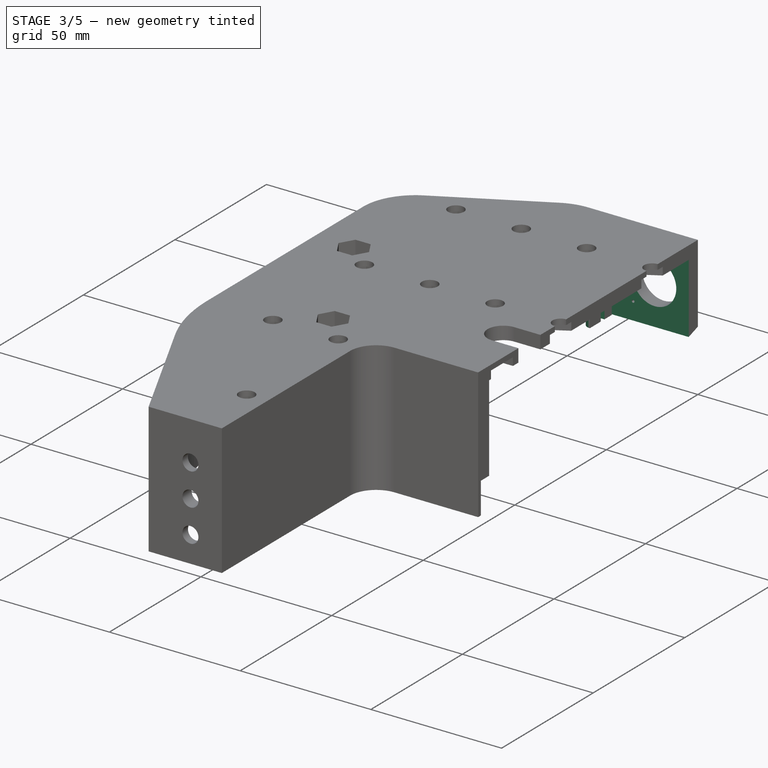
[diagram: stage 3 of 5 — iso view after this stage's code; geometry added in this stage tinted green]
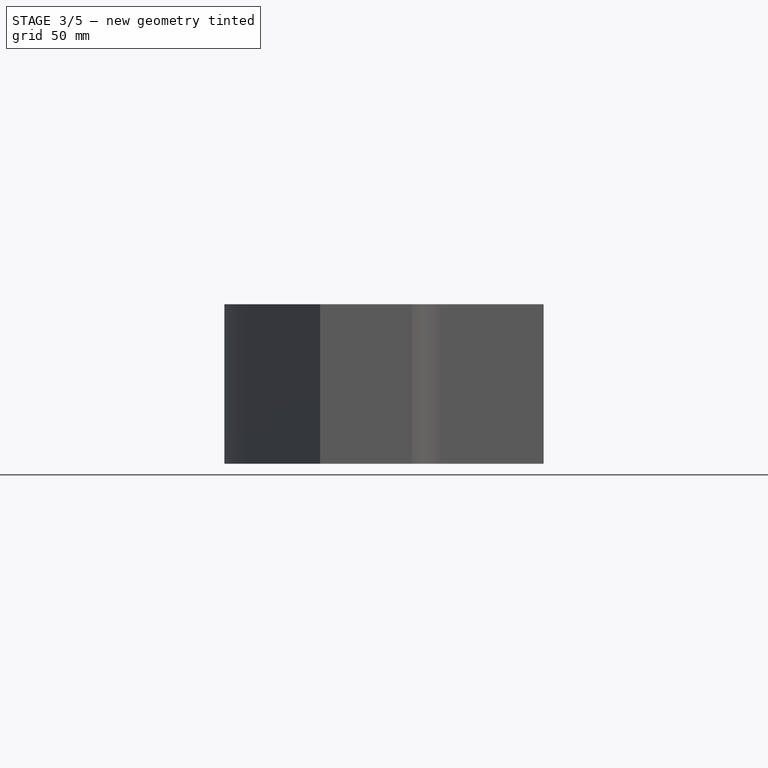
[diagram: stage 3 of 5 — front view after this stage's code; geometry added in this stage tinted green]
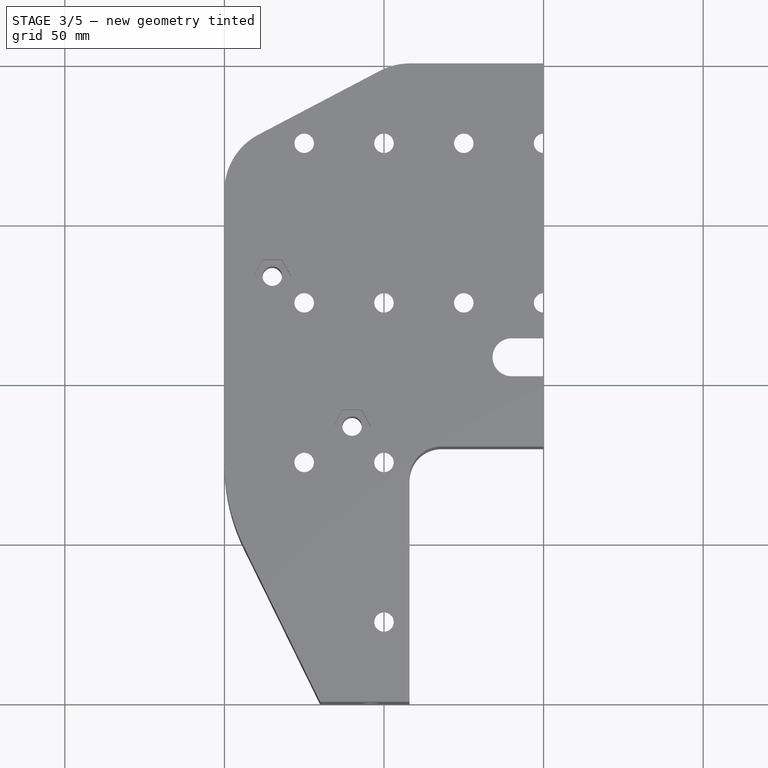
[diagram: stage 3 of 5 — top view after this stage's code; geometry added in this stage tinted green]
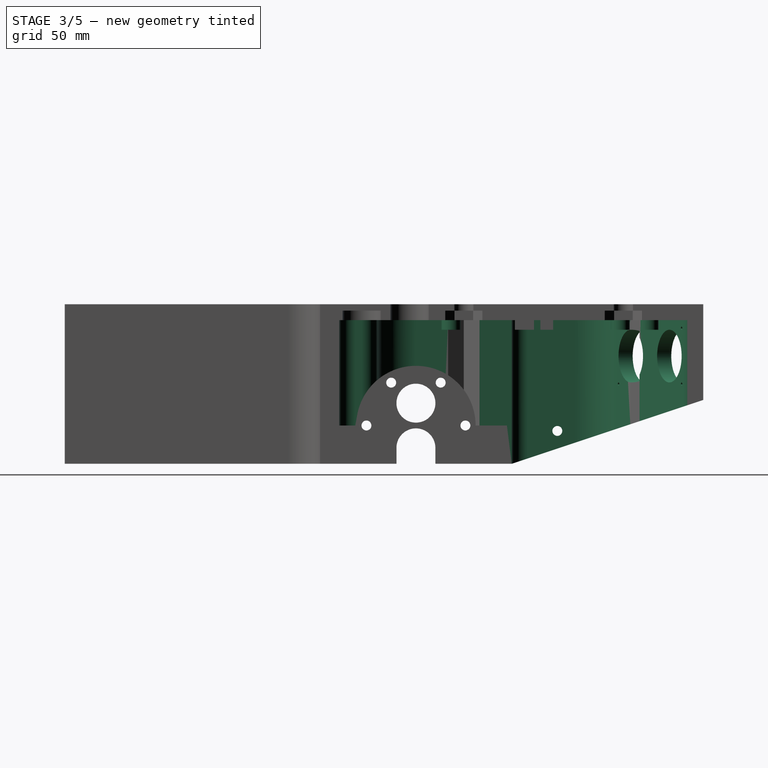
[diagram: stage 3 of 5 — right view after this stage's code; geometry added in this stage tinted green]
FEATURE [Sketcher::SketchObject] Sketch032
  FullyConstrained = true
  MapMode = 5
  Placement = pos=(-51.3136,97.6645,0) rot=(-0.171857,0.696586,0.696586;3.48198rad)
  Support = -> [Pocket075]
  sketch-geometry (10):
    g0: Circle CenterX=0 CenterY=42.5 CenterZ=0 NormalX=0 NormalY=0 NormalZ=1 AngleXU=0 Radius=0.5
    g1: Circle CenterX=42.5 CenterY=42.5 CenterZ=0 NormalX=0 NormalY=0 NormalZ=1 AngleXU=0 Radius=0.5
    g2: Circle CenterX=0 CenterY=25 CenterZ=0 NormalX=0 NormalY=0 NormalZ=1 AngleXU=0 Radius=0.5
    g3: Circle CenterX=42.5 CenterY=25 CenterZ=0 NormalX=0 NormalY=0 NormalZ=1 AngleXU=0 Radius=0.5
    g4: LineSegment StartX=0 StartY=25 StartZ=0 EndX=42.5 EndY=25 EndZ=0
    g5: LineSegment StartX=42.5 StartY=25 StartZ=0 EndX=42.5 EndY=42.5 EndZ=0
    g6: LineSegment StartX=42.5 StartY=42.5 StartZ=0 EndX=0 EndY=42.5 EndZ=0
    g7: LineSegment StartX=0 StartY=42.5 StartZ=0 EndX=0 EndY=25 EndZ=0
    g8: Circle CenterX=8.25 CenterY=33.75 CenterZ=0 NormalX=0 NormalY=0 NormalZ=1 AngleXU=0 Radius=8.25
    g9: Circle CenterX=34.25 CenterY=33.75 CenterZ=0 NormalX=0 NormalY=0 NormalZ=1 AngleXU=0 Radius=8.25
  constraints (26):
    c: Coincident(g4,g5)
    c: Coincident(g5,g6)
    c: Coincident(g6,g7)
    c: Coincident(g7,g4)
    c: Horizontal(g4)
    c: Horizontal(g6)
    c: Vertical(g5)
    c: Vertical(g7)
    c: DistanceX(g-1,g4) = 0
    c: DistanceY(g-1,g4) = 25
    c: Distance(g7) = 17.5
    c: Distance(g4) = 42.5
    c: Coincident(g0,g6)
    c: Coincident(g2,g4)
    c: Coincident(g1,g5)
    c: Coincident(g3,g4)
    c: Equal(g0,g1)
    c: Equal(g1,g3)
    c: Equal(g3,g2)
    c: Diameter(g1) = 1
    c: Equal(g8,g9)
    c: Diameter(g9) = 16.5
    c: DistanceX(g8,g9) = 26
    c: DistanceY(g9,g8) = 0
    c: DistanceY(g2,g8) = 8.75
    c: DistanceX(g2,g8) = 8.25
FEATURE [PartDesign::Pocket] Pocket077  label="ultra sonic side"
  BaseFeature = -> Pocket075
  Direction = (0.465116,-0.88525,0)
  Length = 8
  Length2 = 5
  Profile = -> Sketch032
  ReferenceAxis = -> Sketch032 [N_Axis]
  Type = 0
FEATURE [PartDesign::Pocket] Pocket078  label="front slope"
  BaseFeature = -> Pocket077
  Direction = (-1,0,0)
  Length = 5
  Length2 = 5
  Profile = -> Sketch035
  ReferenceAxis = -> Sketch035 [N_Axis]
  Type = 1
FEATURE [PartDesign::Pocket] Pocket079  label="Pocket front"
  BaseFeature = -> Pocket078
  Direction = (0,0,1)
  Length = 45
  Length2 = 5
  Profile = -> Sketch025
  ReferenceAxis = -> Sketch025 [N_Axis]
  Type = 0
FEATURE [PartDesign::Pad] Pad  label="controller mount standoff"
  BaseFeature = -> Pocket079
  Direction = (0,0,-1)
  Length = 3
  Length2 = 10
  Profile = -> Sketch058
  ReferenceAxis = -> Sketch058 [N_Axis]
  Type = 0
FEATURE [Sketcher::SketchObject] Sketch059
  FullyConstrained = true
  MapMode = 5
  Placement = pos=(0,-95,0) rot=(0,0.707107,0.707107;3.14159rad)
  sketch-geometry (14):
    g0: LineSegment StartX=59.05 StartY=7.08438 StartZ=0 EndX=59.05 EndY=12.9156 EndZ=0
    g1: LineSegment StartX=59.05 StartY=12.9156 StartZ=0 EndX=54 EndY=15.8312 EndZ=0
    g2: LineSegment StartX=54 StartY=15.8312 StartZ=0 EndX=48.95 EndY=12.9156 EndZ=0
    g3: LineSegment StartX=48.95 StartY=12.9156 StartZ=0 EndX=48.95 EndY=7.08438 EndZ=0
    g4: LineSegment StartX=48.95 StartY=7.08438 StartZ=0 EndX=54 EndY=4.16876 EndZ=0
    g5: LineSegment StartX=54 StartY=4.16876 StartZ=0 EndX=59.05 EndY=7.08438 EndZ=0
    g6: Circle CenterX=54 CenterY=10 CenterZ=0 NormalX=0 NormalY=0 NormalZ=1 AngleXU=0 Radius=5.83124
    g7: LineSegment StartX=59.05 StartY=32.0844 StartZ=0 EndX=59.05 EndY=37.9156 EndZ=0
    g8: LineSegment StartX=59.05 StartY=37.9156 StartZ=0 EndX=54 EndY=40.8312 EndZ=0
    g9: LineSegment StartX=54 StartY=40.8312 StartZ=0 EndX=48.95 EndY=37.9156 EndZ=0
    g10: LineSegment StartX=48.95 StartY=37.9156 StartZ=0 EndX=48.95 EndY=32.0844 EndZ=0
    g11: LineSegment StartX=48.95 StartY=32.0844 StartZ=0 EndX=54 EndY=29.1688 EndZ=0
    g12: LineSegment StartX=54 StartY=29.1688 StartZ=0 EndX=59.05 EndY=32.0844 EndZ=0
    g13: Circle CenterX=54 CenterY=35 CenterZ=0 NormalX=0 NormalY=0 NormalZ=1 AngleXU=0 Radius=5.83124
  constraints (34):
    c: Coincident(g0,g1)
    c: Coincident(g1,g2)
    c: Coincident(g2,g3)
    c: Coincident(g3,g4)
    c: Coincident(g4,g5)
    c: Coincident(g5,g0)
    c: Equal(g0, g1-g5) x5
    c: PointOnObject(g0,g6)
    c: PointOnObject(g1,g6)
    c: PointOnObject(g2,g6)
    c: PointOnObject(g3,g6)
    c: PointOnObject(g4,g6)
    c: PointOnObject(g5,g6)
    c: Coincident(g7,g8)
    c: Coincident(g8,g9)
    c: Coincident(g9,g10)
    c: Coincident(g10,g11)
    c: Coincident(g11,g12)
    c: Coincident(g12,g7)
    c: Equal(g7, g8-g12) x5
    c: PointOnObject(g7,g13)
    c: PointOnObject(g8,g13)
    c: PointOnObject(g9,g13)
    c: PointOnObject(g10,g13)
    c: PointOnObject(g11,g13)
    c: PointOnObject(g12,g13)
    c: Vertical(g10)
    c: Vertical(g3)
    c: DistanceX(g13,g6) = 0
    c: DistanceX(g-1,g6) = 54
    c: DistanceY(g-1,g6) = 10
    c: DistanceY(g6,g13) = 25
    c: Equal(g13,g6)
    c: DistanceX(g2,g0) = 10.1
FEATURE [PartDesign::Pocket] Pocket081  label="screw nuts back chassis"
  BaseFeature = -> Pad
  Direction = (0,-1,2e-16)
  Length = 4
  Length2 = 5
  Midplane = true
  Profile = -> Sketch059
  ReferenceAxis = -> Sketch059 [N_Axis]
  Type = 0
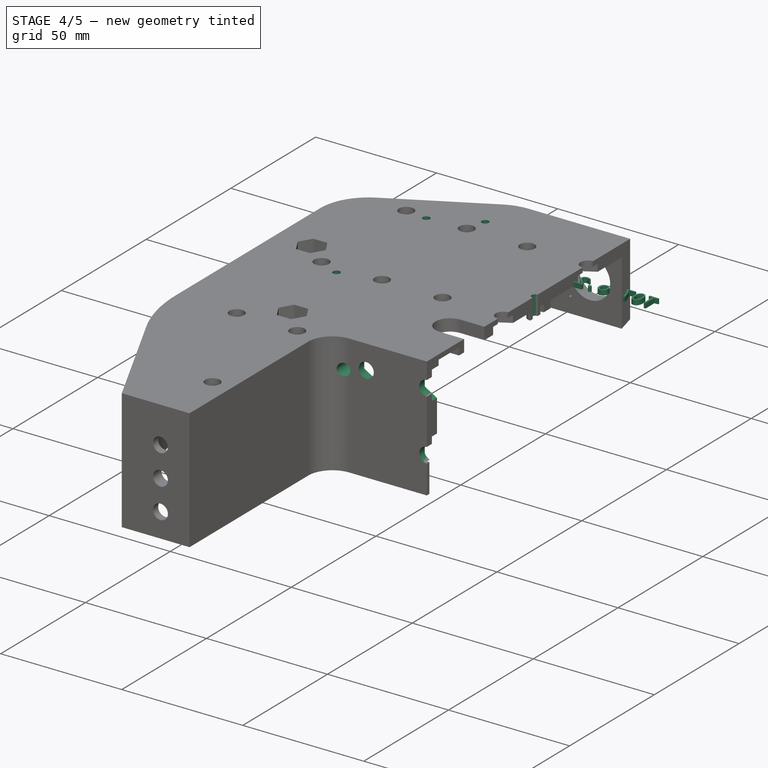
[diagram: stage 4 of 5 — iso view after this stage's code; geometry added in this stage tinted green]
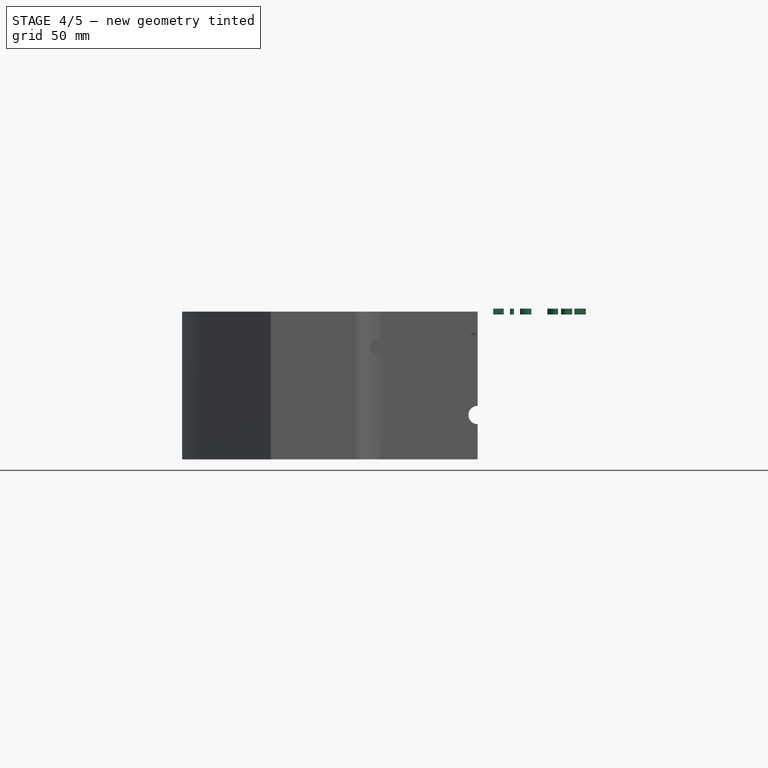
[diagram: stage 4 of 5 — front view after this stage's code; geometry added in this stage tinted green]
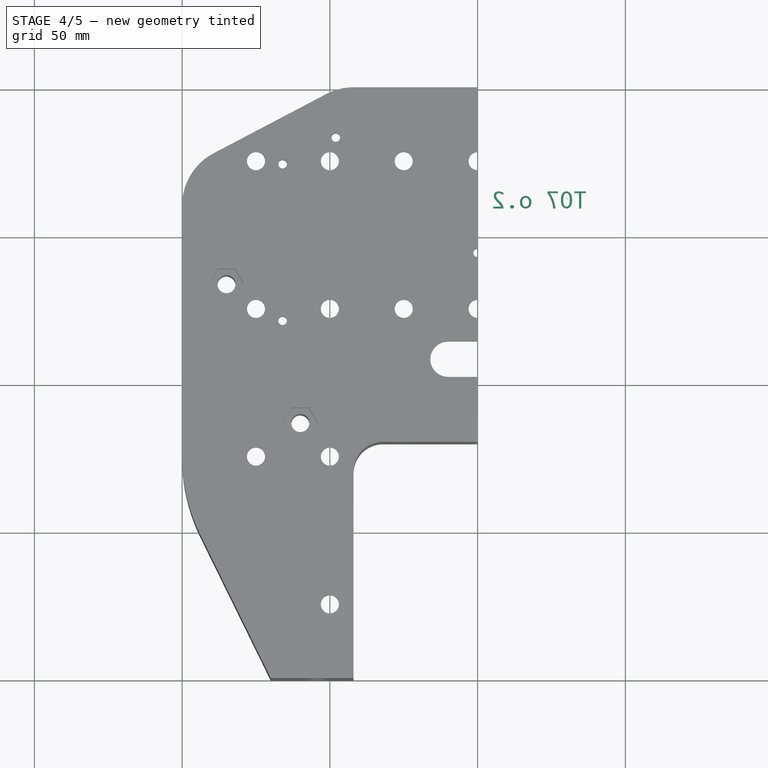
[diagram: stage 4 of 5 — top view after this stage's code; geometry added in this stage tinted green]
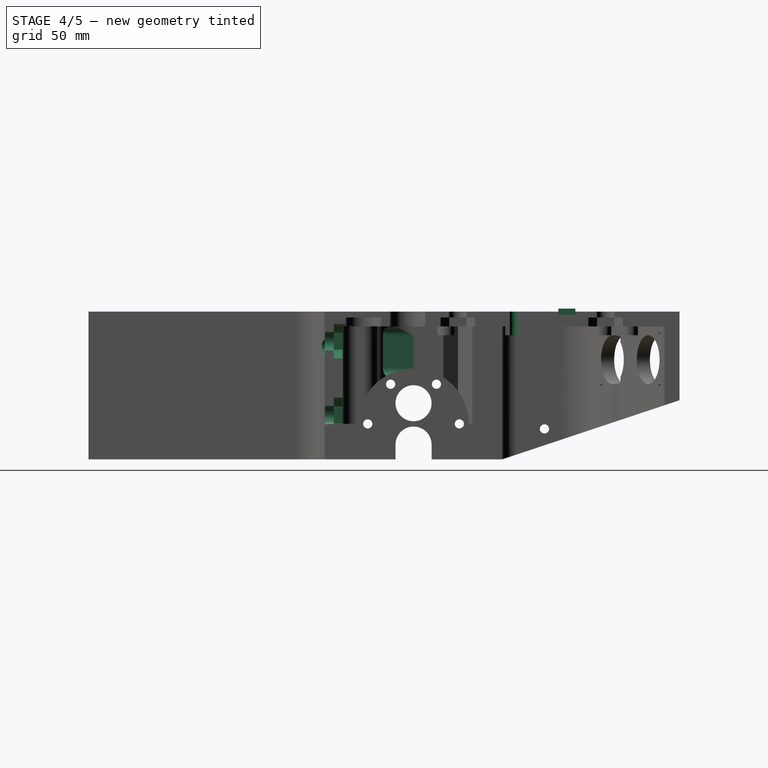
[diagram: stage 4 of 5 — right view after this stage's code; geometry added in this stage tinted green]
FEATURE [Sketcher::SketchObject] Sketch058  label="stabilization center001"
  FullyConstrained = true
  MapMode = 5
  Placement = pos=(0,0,45) rot=(1,0,0;3.14159rad)
  sketch-geometry (9):
    g0: LineSegment StartX=-95 StartY=-49 StartZ=0 EndX=0 EndY=-49 EndZ=0
    g1: LineSegment StartX=0 StartY=-49 StartZ=0 EndX=0 EndY=-53 EndZ=0
    g2: LineSegment StartX=0 StartY=-53 StartZ=0 EndX=-95 EndY=-53 EndZ=0
    g3: LineSegment StartX=-95 StartY=-53 StartZ=0 EndX=-95 EndY=-49 EndZ=0
    g4: Circle CenterX=-66 CenterY=-21 CenterZ=0 NormalX=0 NormalY=0 NormalZ=1 AngleXU=0 Radius=3
    g5: Circle CenterX=-48 CenterY=-83 CenterZ=0 NormalX=0 NormalY=0 NormalZ=1 AngleXU=0 Radius=3
    g6: Circle CenterX=-66 CenterY=-74 CenterZ=0 NormalX=0 NormalY=0 NormalZ=1 AngleXU=0 Radius=3
    g7: ArcOfCircle CenterX=0 CenterY=-44 CenterZ=0 NormalX=0 NormalY=0 NormalZ=1 AngleXU=0 Radius=3 StartAngle=1.5708 EndAngle=4.71239
    g8: LineSegment StartX=-6e-16 StartY=-47 StartZ=0 EndX=2e-16 EndY=-41 EndZ=0
  constraints (28):
    c: Coincident(g0,g1)
    c: Coincident(g1,g2)
    c: Coincident(g2,g3)
    c: Coincident(g3,g0)
    c: Horizontal(g0)
    c: Horizontal(g2)
    c: Vertical(g1)
    c: Vertical(g3)
    c: Distance(g0) = 95
    c: Distance(g3) = 4
    c: DistanceX(g-1,g0) = 0
    c: DistanceY(g0,g-1) = 49
    c: DistanceY(g4,g-1) = 21
    c: DistanceX(g4,g-1) = 66
    c: Diameter(g4) = 6
    c: Equal(g4,g5)
    c: DistanceY(g5,g4) = 62
    c: DistanceX(g5,g-1) = 48
    c: Equal(g4,g6)
    c: DistanceX(g6,g-1) = 66
    c: DistanceY(g6,g4) = 53
    c: PointOnObject(g7,g-2)
    c: PointOnObject(g7,g-2)
    c: PointOnObject(g7,g-2)
    c: Equal(g4,g7)
    c: DistanceY(g7,g4) = 23
    c: Coincident(g7,g8)
    c: Coincident(g8,g7)
FEATURE [Part::Part2DObjectPython] ShapeString  # Draft 2D object (typed FeaturePython)
  FontFile = <path>
  Placement = pos=(0,0,0) rot=(0,0,1;3.14159rad)
  Size = 3
  String = T07 o.2
  Tracking = 0
FEATURE [Part::Extrusion] Extrude
  Base = -> ShapeString
  Dir = (0,0,1)
  DirMode = 2
  FaceMakerClass = Part::FaceMakerBullseye
  LengthFwd = 2
  LengthRev = 0
  Placement = pos=(37,59,51) rot=(1,0,0;3.14159rad)
  Solid = true
  Symmetric = false
FEATURE [Sketcher::SketchObject] Sketch060
  FullyConstrained = true
  MapMode = 5
  Placement = pos=(0,-20,0) rot=(1,0,0;1.5708rad)
  Support = -> [Pocket081]
  sketch-geometry (10):
    g0: Circle CenterX=-25 CenterY=40 CenterZ=0 NormalX=0 NormalY=0 NormalZ=1 AngleXU=0 Radius=3.1
    g1: ArcOfCircle CenterX=0 CenterY=15 CenterZ=0 NormalX=0 NormalY=0 NormalZ=1 AngleXU=0 Radius=3.1 StartAngle=1.5708 EndAngle=4.71239
    g2: LineSegment StartX=2e-16 StartY=18.1 StartZ=0 EndX=2e-16 EndY=11.9 EndZ=0
    g3: ArcOfCircle CenterX=-69 CenterY=41.9 CenterZ=0 NormalX=0 NormalY=0 NormalZ=1 AngleXU=0 Radius=3 StartAngle=-9e-16 EndAngle=3.14159
    g4: ArcOfCircle CenterX=-69 CenterY=30.9 CenterZ=0 NormalX=0 NormalY=0 NormalZ=1 AngleXU=0 Radius=3 StartAngle=3.14159 EndAngle=6.28319
    g5: LineSegment StartX=-72 StartY=41.9 StartZ=0 EndX=-72 EndY=30.9 EndZ=0
    g6: LineSegment StartX=-66 StartY=30.9 StartZ=0 EndX=-66 EndY=41.9 EndZ=0
    g7: ArcOfCircle CenterX=0 CenterY=40 CenterZ=0 NormalX=0 NormalY=0 NormalZ=1 AngleXU=0 Radius=3.1 StartAngle=1.5708 EndAngle=4.71239
    g8: LineSegment StartX=2e-16 StartY=36.9 StartZ=0 EndX=2e-16 EndY=43.1 EndZ=0
    g9: Circle CenterX=-34 CenterY=38 CenterZ=0 NormalX=0 NormalY=0 NormalZ=1 AngleXU=0 Radius=2.5
  constraints (30):
    c: PointOnObject(g1,g-2)
    c: PointOnObject(g1,g-2)
    c: Coincident(g2,g1)
    c: Coincident(g2,g1)
    c: Vertical(g2)
    c: Equal(g1,g0)
    c: DistanceY(g1,g0) = 25
    c: DistanceX(g0,g1) = 25
    c: Diameter(g0) = 6.2
    c: DistanceY(g-1,g0) = 40
    c: Tangent(g3,g5) = -1.5708
    c: Tangent(g5,g4) = -1.5708
    c: Tangent(g4,g6) = -1.5708
    c: Tangent(g6,g3) = -1.5708
    c: Equal(g3,g4)
    c: Vertical(g5)
    c: DistanceY(g-1,g3) = 41.9
    c: Diameter(g3) = 6
    c: DistanceY(g4,g3) = 11
    c: DistanceX(g4,g-1) = 69
    c: PointOnObject(g7,g-2)
    c: PointOnObject(g7,g-2)
    c: Coincident(g8,g7)
    c: Coincident(g8,g7)
    c: Vertical(g8)
    c: Equal(g0,g7)
    c: DistanceY(g7,g0) = 0
    c: Diameter(g9) = 5
    c: DistanceY(g-1,g9) = 38
    c: DistanceX(g9,g-1) = 34
FEATURE [PartDesign::Pocket] Pocket082  label="screws battery adapter"
  BaseFeature = -> Pocket081
  Direction = (0,1,-2e-16)
  Length = 60
  Length2 = 5
  Midplane = true
  Profile = -> Sketch060
  ReferenceAxis = -> Sketch060 [N_Axis]
  Type = 0
FEATURE [Sketcher::SketchObject] Sketch061
  FullyConstrained = true
  MapMode = 5
  Placement = pos=(0,-14,0) rot=(0,0.707107,0.707107;3.14159rad)
  Support = -> [Pocket082]
  sketch-geometry (21):
    g0: LineSegment StartX=30.05 StartY=37.0844 StartZ=0 EndX=30.05 EndY=42.9156 EndZ=0
    g1: LineSegment StartX=30.05 StartY=42.9156 StartZ=0 EndX=25 EndY=45.8312 EndZ=0
    g2: LineSegment StartX=25 StartY=45.8312 StartZ=0 EndX=19.95 EndY=42.9156 EndZ=0
    g3: LineSegment StartX=19.95 StartY=42.9156 StartZ=0 EndX=19.95 EndY=37.0844 EndZ=0
    g4: LineSegment StartX=19.95 StartY=37.0844 StartZ=0 EndX=25 EndY=34.1688 EndZ=0
    g5: LineSegment StartX=25 StartY=34.1688 StartZ=0 EndX=30.05 EndY=37.0844 EndZ=0
    g6: Circle CenterX=25 CenterY=40 CenterZ=0 NormalX=0 NormalY=0 NormalZ=1 AngleXU=0 Radius=5.83124
    g7: LineSegment StartX=5.05 StartY=12.0844 StartZ=0 EndX=5.05 EndY=17.9156 EndZ=0
    g8: LineSegment StartX=5.05 StartY=17.9156 StartZ=0 EndX=0 EndY=20.8312 EndZ=0
    g9: LineSegment StartX=0 StartY=20.8312 StartZ=0 EndX=-5.05 EndY=17.9156 EndZ=0
    g10: LineSegment StartX=-5.05 StartY=17.9156 StartZ=0 EndX=-5.05 EndY=12.0844 EndZ=0
    g11: LineSegment StartX=-5.05 StartY=12.0844 StartZ=0 EndX=0 EndY=9.16876 EndZ=0
    g12: LineSegment StartX=0 StartY=9.16876 StartZ=0 EndX=5.05 EndY=12.0844 EndZ=0
    g13: Circle CenterX=0 CenterY=15 CenterZ=0 NormalX=0 NormalY=0 NormalZ=1 AngleXU=0 Radius=5.83124
    g14: LineSegment StartX=5.05 StartY=42.9156 StartZ=0 EndX=-1.8e-15 EndY=45.8312 EndZ=0
    g15: LineSegment StartX=-1.8e-15 StartY=45.8312 StartZ=0 EndX=-5.05 EndY=42.9156 EndZ=0
    g16: LineSegment StartX=-5.05 StartY=42.9156 StartZ=0 EndX=-5.05 EndY=37.0844 EndZ=0
    g17: LineSegment StartX=-5.05 StartY=37.0844 StartZ=0 EndX=0 EndY=34.1688 EndZ=0
    g18: LineSegment StartX=0 StartY=34.1688 StartZ=0 EndX=5.05 EndY=37.0844 EndZ=0
    g19: LineSegment StartX=5.05 StartY=37.0844 StartZ=0 EndX=5.05 EndY=42.9156 EndZ=0
    g20: Circle CenterX=0 CenterY=40 CenterZ=0 NormalX=0 NormalY=0 NormalZ=1 AngleXU=0 Radius=5.83124
  constraints (51):
    c: Coincident(g0,g1)
    c: Coincident(g1,g2)
    c: Coincident(g2,g3)
    c: Coincident(g3,g4)
    c: Coincident(g4,g5)
    c: Coincident(g5,g0)
    c: Equal(g0, g1-g5) x5
    c: PointOnObject(g0,g6)
    c: PointOnObject(g1,g6)
    c: PointOnObject(g2,g6)
    c: PointOnObject(g3,g6)
    c: PointOnObject(g4,g6)
    c: PointOnObject(g5,g6)
    c: Coincident(g7,g8)
    c: Coincident(g8,g9)
    c: Coincident(g9,g10)
    c: Coincident(g10,g11)
    c: Coincident(g11,g12)
    c: Coincident(g12,g7)
    c: Equal(g7, g8-g12) x5
    c: PointOnObject(g7,g13)
    c: PointOnObject(g8,g13)
    c: PointOnObject(g9,g13)
    c: PointOnObject(g10,g13)
    c: PointOnObject(g11,g13)
    c: PointOnObject(g12,g13)
    c: PointOnObject(g13,g-2)
    c: Vertical(g0)
    c: Vertical(g7)
    c: DistanceX(g13,g6) = 25
    c: DistanceX(g3,g0) = 10.1
    c: DistanceY(g13,g6) = 25
    c: DistanceY(g-1,g6) = 40
    c: Equal(g6,g13)
    c: Coincident(g14,g15)
    c: Coincident(g15,g16)
    c: Coincident(g16,g17)
    c: Coincident(g17,g18)
    c: Coincident(g18,g19)
    c: Coincident(g19,g14)
    c: Equal(g14, g15-g19) x5
    c: PointOnObject(g14,g20)
    c: PointOnObject(g15,g20)
    c: PointOnObject(g16,g20)
    c: PointOnObject(g17,g20)
    c: PointOnObject(g18,g20)
    c: PointOnObject(g19,g20)
    c: PointOnObject(g20,g-2)
    c: Vertical(g19)
    c: Equal(g6,g20)
    c: DistanceY(g20,g6) = 0
FEATURE [PartDesign::Pocket] Pocket083  label="screw nuts battery adapter"
  BaseFeature = -> Pocket082
  Direction = (0,-1,2e-16)
  Length = 6
  Length2 = 5
  Midplane = true
  Profile = -> Sketch061
  ReferenceAxis = -> Sketch061 [N_Axis]
  Type = 0
FEATURE [Sketcher::SketchObject] Sketch
  FullyConstrained = true
  MapMode = 5
  Placement = pos=(0,0,42) rot=(1,0,0;3.14159rad)
  Support = -> [Pocket083]
  sketch-geometry (5):
    g0: Circle CenterX=-66 CenterY=-21 CenterZ=0 NormalX=0 NormalY=0 NormalZ=1 AngleXU=0 Radius=1.45
    g1: Circle CenterX=-66 CenterY=-74 CenterZ=0 NormalX=0 NormalY=0 NormalZ=1 AngleXU=0 Radius=1.45
    g2: Circle CenterX=-48 CenterY=-83 CenterZ=0 NormalX=0 NormalY=0 NormalZ=1 AngleXU=0 Radius=1.45
    g3: ArcOfCircle CenterX=0 CenterY=-44 CenterZ=0 NormalX=0 NormalY=0 NormalZ=1 AngleXU=0 Radius=1.45 StartAngle=1.5708 EndAngle=4.71239
    g4: LineSegment StartX=1e-16 StartY=-42.55 StartZ=0 EndX=-3e-16 EndY=-45.45 EndZ=0
  constraints (16):
    c: PointOnObject(g3,g-2)
    c: PointOnObject(g3,g-2)
    c: PointOnObject(g3,g-2)
    c: Coincident(g4,g3)
    c: Coincident(g4,g3)
    c: DistanceX(g0,g-1) = 66
    c: DistanceX(g1,g-1) = 66
    c: DistanceX(g2,g-1) = 48
    c: DistanceY(g0,g-1) = 21
    c: DistanceY(g1,g0) = 53
    c: DistanceY(g2,g0) = 62
    c: DistanceY(g3,g0) = 23
    c: Equal(g0,g1)
    c: Equal(g0,g2)
    c: Equal(g0,g3)
    c: Diameter(g0) = 2.9
FEATURE [PartDesign::Pocket] Pocket084  label="controller mount holes"
  BaseFeature = -> Pocket083
  Direction = (0,0,1)
  Length = 5
  Length2 = 5
  Midplane = true
  Profile = -> Sketch
  ReferenceAxis = -> Sketch [N_Axis]
  Type = 1
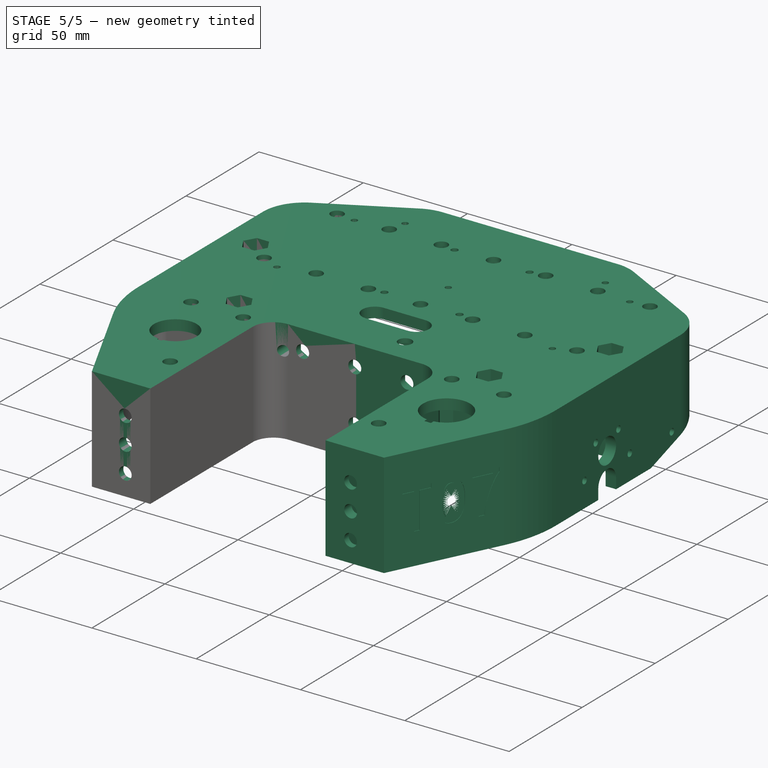
[diagram: stage 5 of 5 — iso view after this stage's code; geometry added in this stage tinted green]
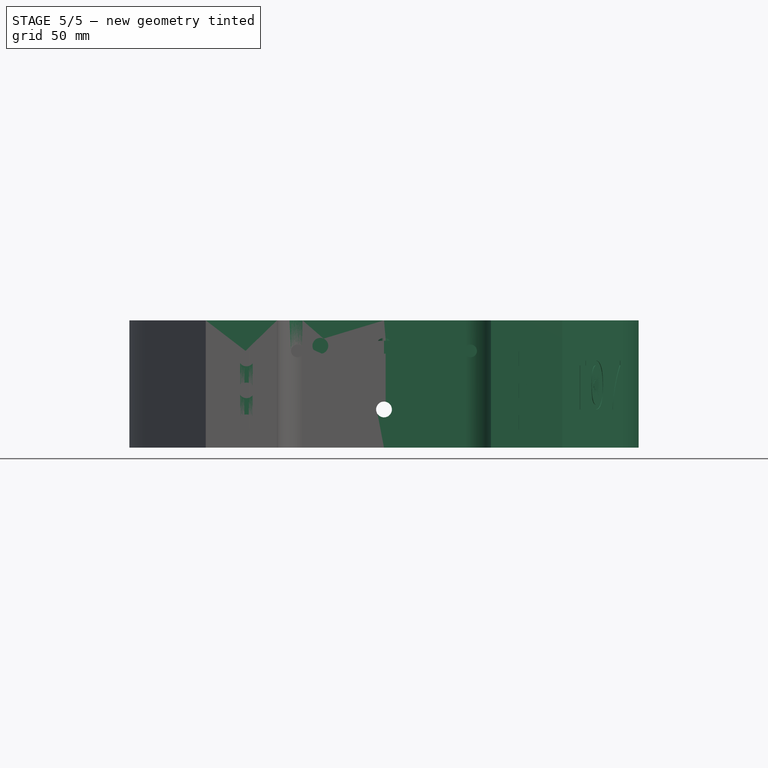
[diagram: stage 5 of 5 — front view after this stage's code; geometry added in this stage tinted green]
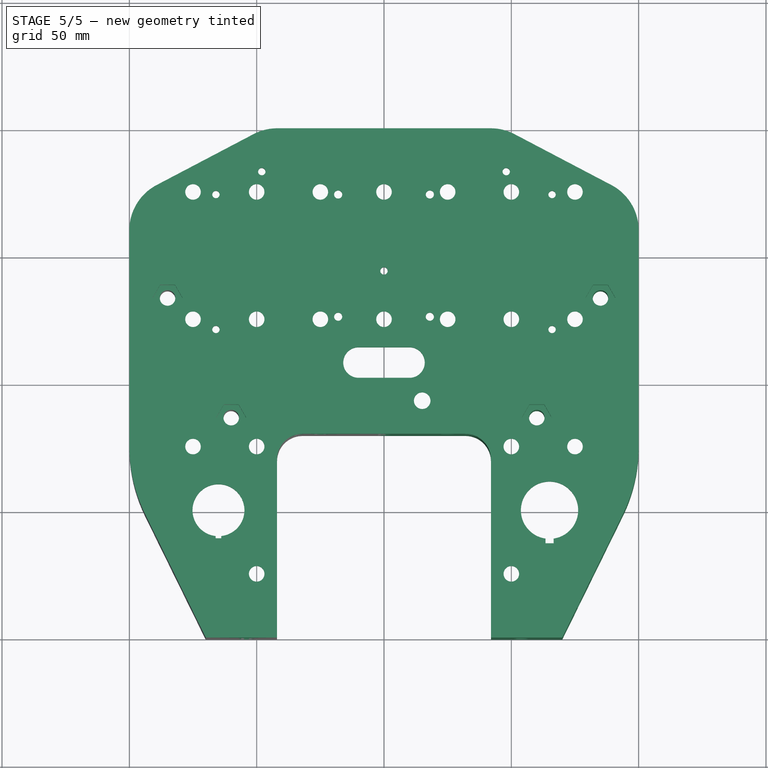
[diagram: stage 5 of 5 — top view after this stage's code; geometry added in this stage tinted green]
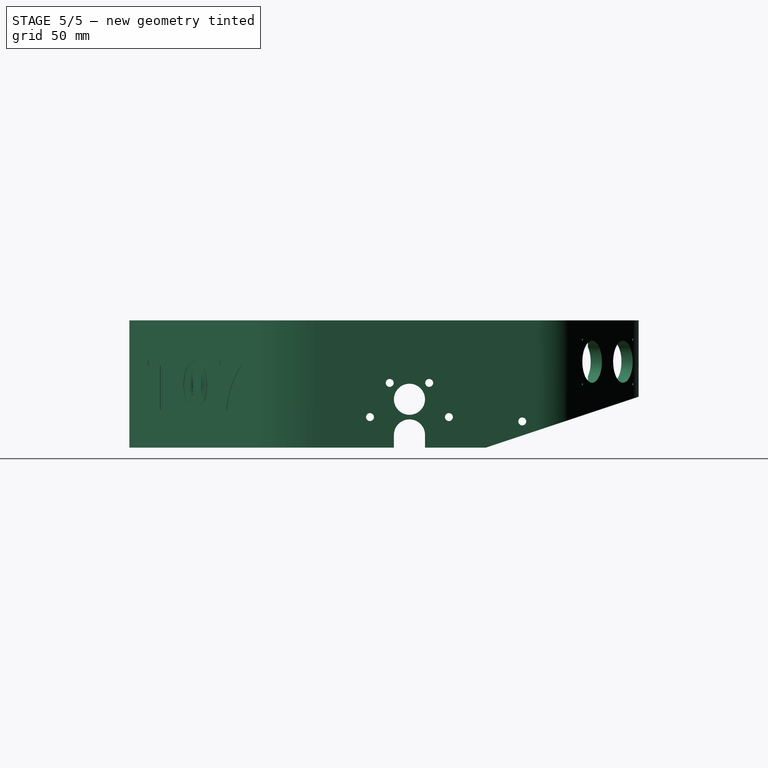
[diagram: stage 5 of 5 — right view after this stage's code; geometry added in this stage tinted green]
FEATURE [PartDesign::Body] Body006
  Group = -> [Sketch026,Pad007,Sketch025,Sketch024,Sketch027,Pocket021,Sketch028,Sketch029,Sketch030,Pocket023,Sketch031,Pocket025,Sketch032,Pocket028,Sketch035,Sketch040,Sketch053,Pocket040,Pocket041,Sketch058,Pocket072,Pocket075,Pocket077,Pocket078,Pocket079,Pad,Sketch,Sketch059,Pocket081,Sketch060,Pocket082,Sketch061,Pocket083,Pocket084]
  Origin = -> Origin017
  Placement = pos=(0,0,5) rot=(0,0,1;0rad)
  Tip = -> Pocket084
FEATURE [Part::Mirroring] Part__Mirroring  label="Body006 (Mirror #1)"
  Base = (0,0,0)
  Normal = (1,0,0)
  Source = -> Body006
FEATURE [Part::FeaturePython] Connect  # WARN: FeaturePython — macro-defined, semantics opaque (R4)
  Objects = -> [Part__Mirroring,Body006,Extrude]
  Tolerance = 0
FEATURE [PartDesign::FeatureBase] BaseFeature
  BaseFeature = -> Connect
FEATURE [PartDesign::Pocket] Pocket
  BaseFeature = -> BaseFeature
  Direction = (0,0,-1)
  Length = 5
  Length2 = 5
  Profile = -> Sketch051
  ReferenceAxis = -> Sketch051 [N_Axis]
  Type = 1
FEATURE [Part::Part2DObjectPython] ShapeString003  # Draft 2D object (typed FeaturePython)
  FontFile = <path>
  MakeFace = true
  Placement = pos=(73.1,-93.68,19.99) rot=(0.750406,0.467382,0.467382;1.85407rad)
  Size = 10
  String = T07
  Tracking = 0
FEATURE [PartDesign::Pocket] Pocket085
  BaseFeature = -> Pocket
  Direction = (-0.897509,0.440996,1e-16)
  Length = 0.4
  Length2 = 5
  Midplane = true
  Profile = -> ShapeString003
  ReferenceAxis = -> ShapeString003 [N_Axis]
  Type = 0
FEATURE [PartDesign::Body] Body
  BaseFeature = -> Connect
  Group = -> [BaseFeature,Sketch051,Pocket,ShapeString003,Pocket085]
  Origin = -> Origin020
  Tip = -> Pocket085
FEATURE [App::Part] Model  label="mainchassis"
  Configuration = 0
  Group = -> [Body]
  Origin = -> Origin
  Type = Assembly4 Model
note: 2 file-system paths scrubbed to <path> (originals preserved in the JSON sidecar)
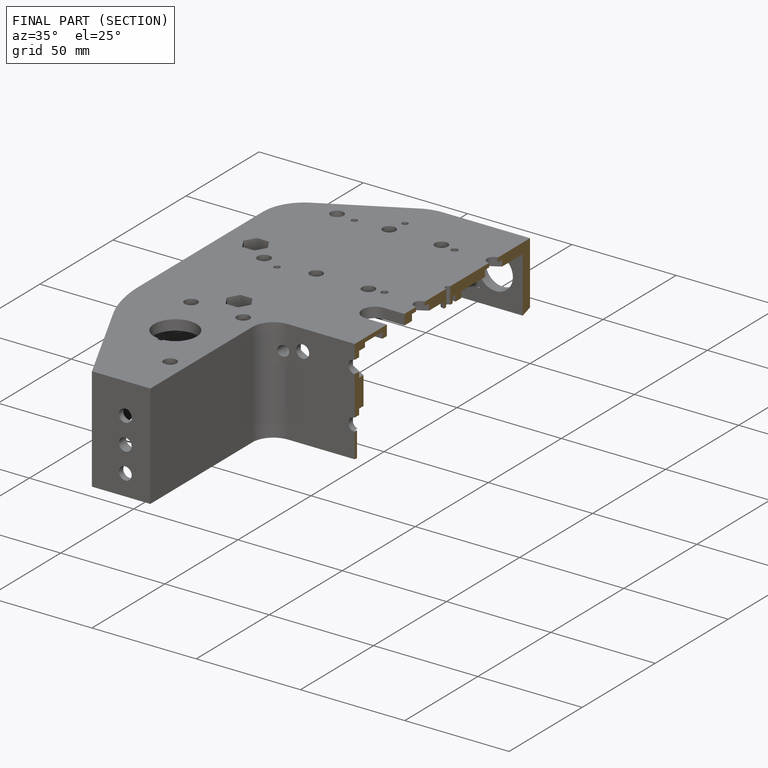
[diagram: finished part — half-section view (interior)]
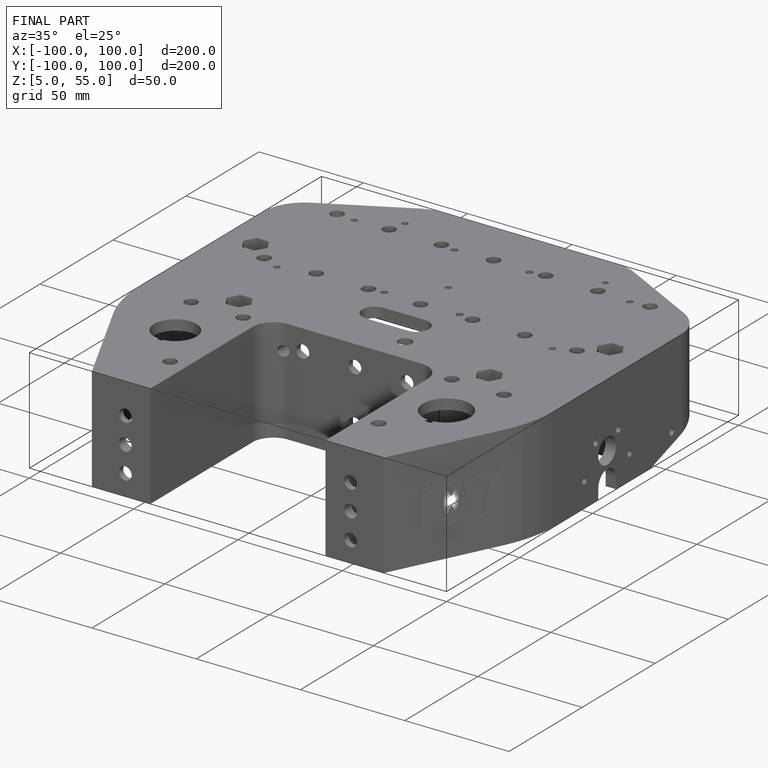
[diagram: finished part — iso view with bounding-box wireframe]
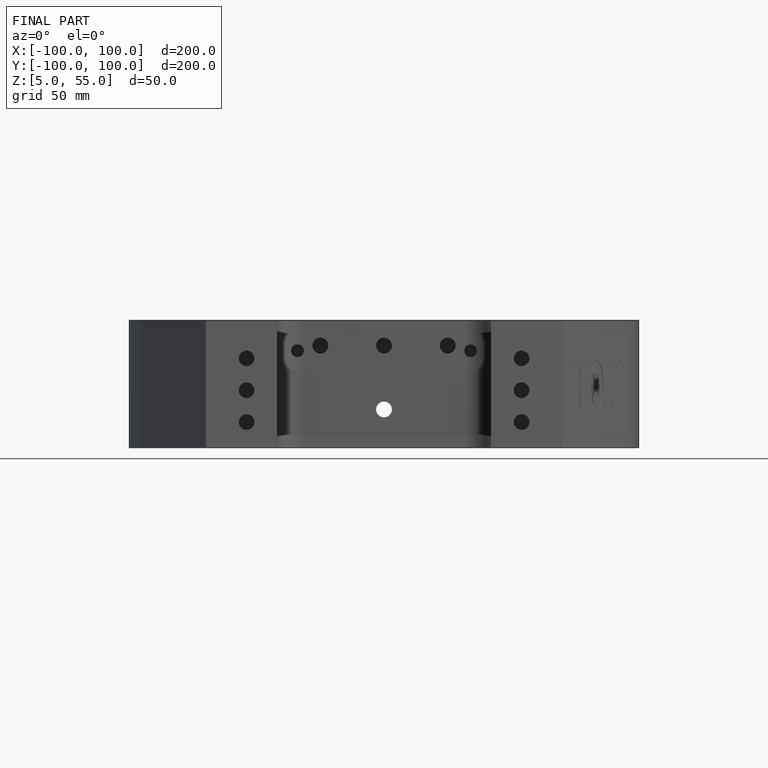
[diagram: finished part — front view with bounding-box wireframe]
